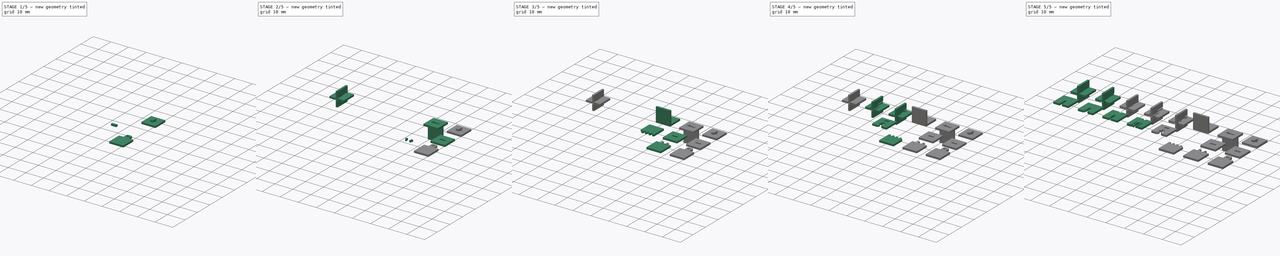
[diagram: build sequence overview — one tinted view per stage of 5, left to right]
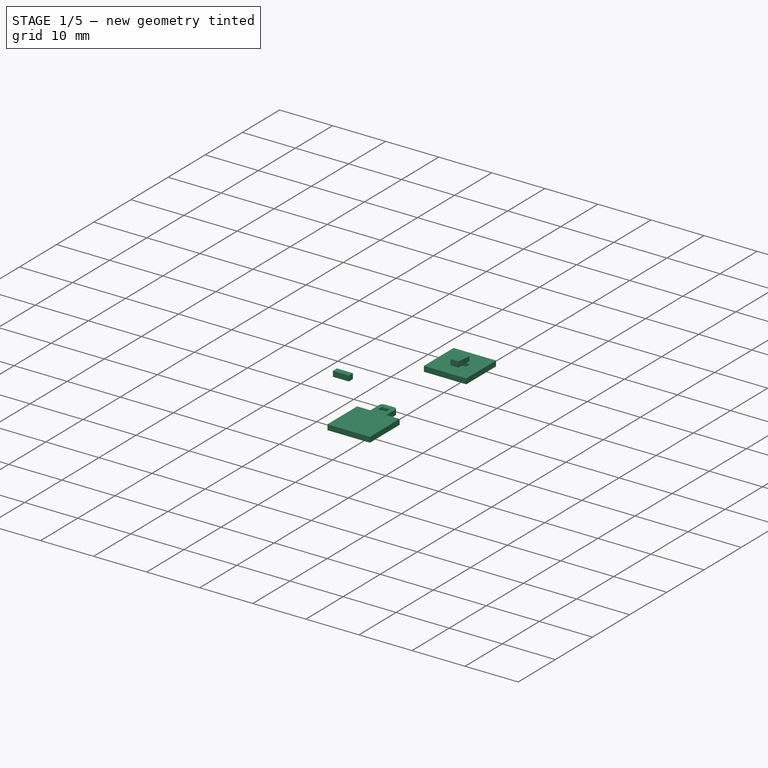
[diagram: stage 1 of 5 — iso view after this stage's code; geometry added in this stage tinted green]
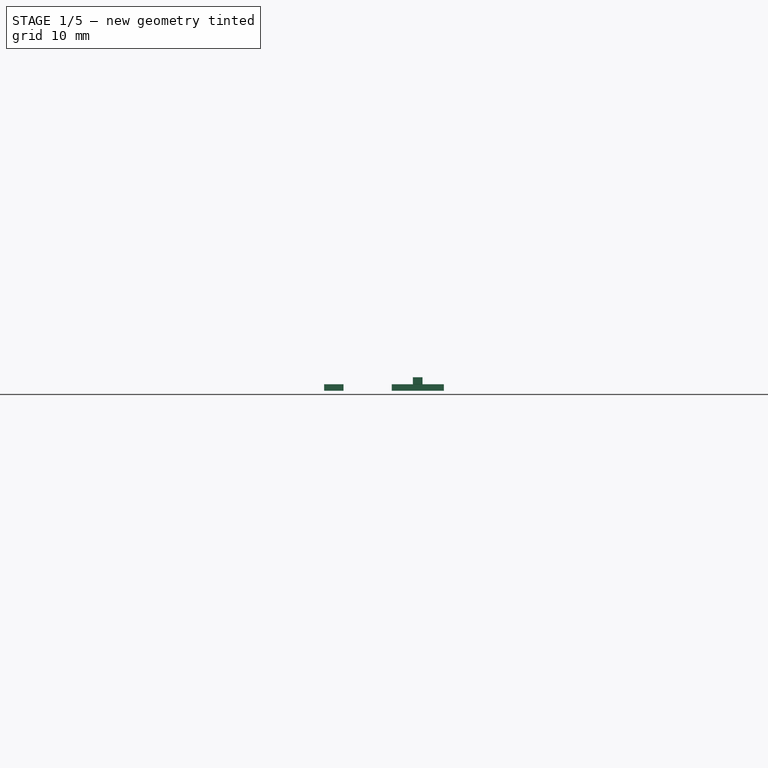
[diagram: stage 1 of 5 — front view after this stage's code; geometry added in this stage tinted green]
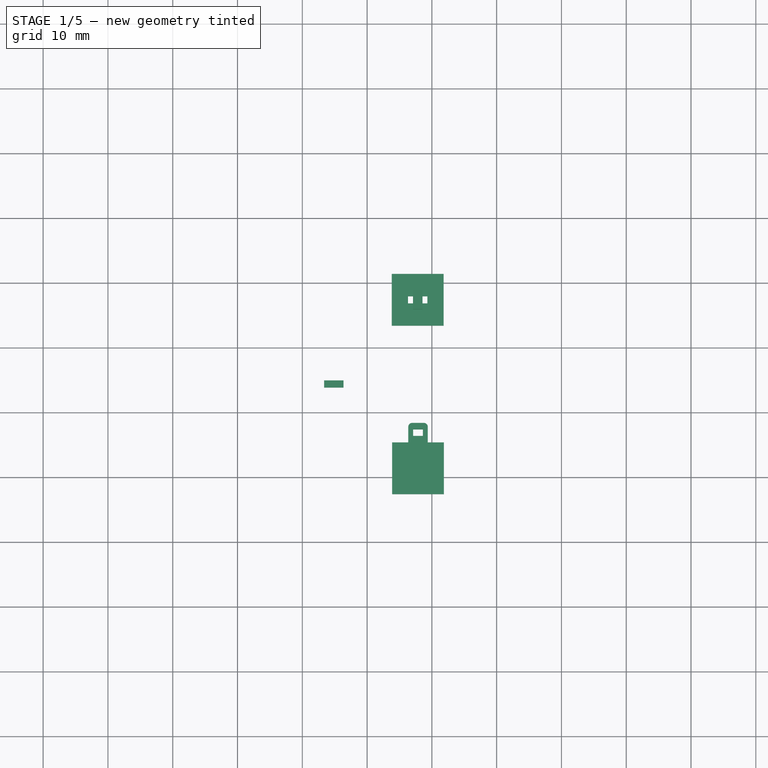
[diagram: stage 1 of 5 — top view after this stage's code; geometry added in this stage tinted green]
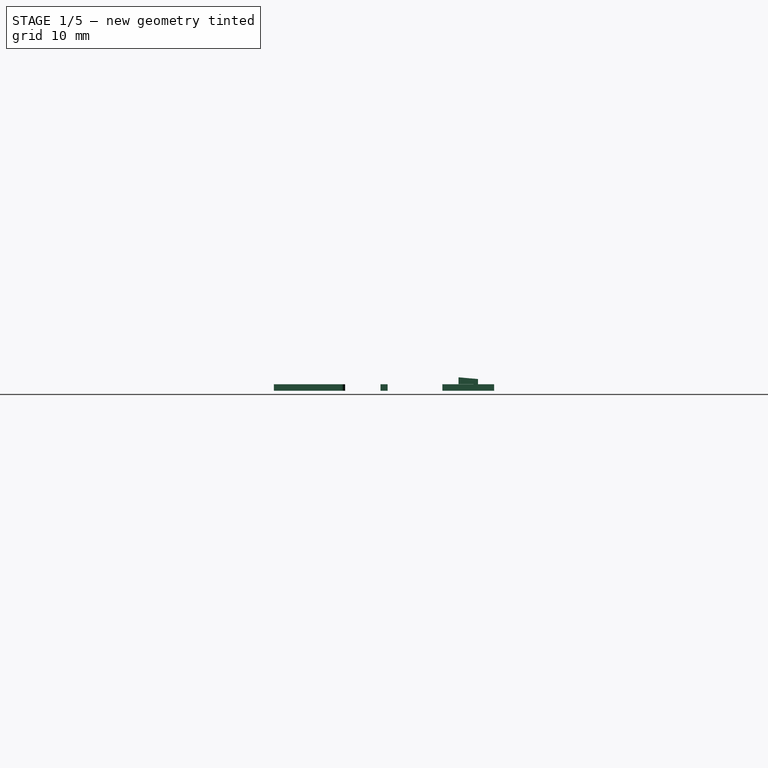
[diagram: stage 1 of 5 — right view after this stage's code; geometry added in this stage tinted green]
FCSTD DOCUMENT  (FreeCAD 0.18.3R)
Label: joints
License: All rights reserved
LicenseURL: http://en.wikipedia.org/wiki/All_rights_reserved
objects: Part::FeaturePython×18, Part::Part2DObjectPython×16, App::FeaturePython×10, Part::Extrusion×9, Sketcher::SketchObject×8, Part::Box×5, Part::Cut×3, Part::MultiFuse×2, Spreadsheet::Sheet×1, Part::Loft×1
note: 62 computed .brp shape members not serialized (recipe doc carries the construction recipe); baked Part::Feature solids carry a one-line shape summary decoded from their .brp

FEATURE [Part::Box] Box002  label="snapCubeSlot"
  AttacherType = Attacher::AttachEngine3D
  Height = 1
  Length = 8
  Placement = pos=(30.86,30.4267,0) rot=(0,0,1;0rad)
  Width = 8
  expr: Width = 2 * Spreadsheet.de
  expr: Length = 2 * Spreadsheet.de
  expr: Height = Spreadsheet.th
FEATURE [Part::Part2DObjectPython] ShapeString006  label="snapString"  # Draft 2D object (typed FeaturePython)
  FontFile = ./Arial Bold.ttf
  Placement = pos=(35.7221,8.66166,0) rot=(0,0,1;1.5708rad)
  Size = 2.5
  String = snap
  Tracking = 0
FEATURE [Sketcher::SketchObject] Sketch005  label="snapSketchSlot"
  ExternalGeometry = -> [Box002]
  MapMode = 5
  Placement = pos=(30.86,30.4267,1) rot=(0,0,1;0rad)
  Support = -> [Box002]
  expr: Constraints[9] = Spreadsheet.sw
  expr: Constraints[8] = Spreadsheet.th + Spreadsheet.cl
  sketch-geometry (7):
    g0: LineSegment StartX=2.5 StartY=4.55 StartZ=0 EndX=5.5 EndY=4.55 EndZ=0
    g1: LineSegment StartX=5.5 StartY=4.55 StartZ=0 EndX=5.5 EndY=3.45 EndZ=0
    g2: LineSegment StartX=5.5 StartY=3.45 StartZ=0 EndX=2.5 EndY=3.45 EndZ=0
    g3: LineSegment StartX=2.5 StartY=3.45 StartZ=0 EndX=2.5 EndY=4.55 EndZ=0
    g4: LineSegment [constr] StartX=8 StartY=0 StartZ=0 EndX=5.5 EndY=3.45 EndZ=0
    g5: LineSegment [constr] StartX=0 StartY=8 StartZ=0 EndX=2.5 EndY=4.55 EndZ=0
    g6: LineSegment [constr] StartX=0 StartY=0 StartZ=0 EndX=2.5 EndY=3.45 EndZ=0
  constraints (18):
    c: Coincident(g0,g1)
    c: Coincident(g1,g2)
    c: Coincident(g2,g3)
    c: Coincident(g3,g0)
    c: Horizontal(g0)
    c: Horizontal(g2)
    c: Vertical(g1)
    c: Vertical(g3)
    c: DistanceY(g1,g1) = 1.1
    c: DistanceX(g2,g2) = 3
    c: Coincident(g4,g1)
    c: Coincident(g4,g-6)
    c: Coincident(g5,g-4)
    c: Coincident(g5,g0)
    c: Equal(g5,g4)
    c: Coincident(g6,g2)
    c: Coincident(g6,g-1)
    c: Equal(g5,g6)
FEATURE [Part::Extrusion] Extrude006  label="snapSlotExtrude"
  Base = -> Sketch005
  Dir = (0,0,1)
  DirMode = 2
  FaceMakerClass = Part::FaceMakerBullseye
  LengthFwd = -1
  LengthRev = 0
  Solid = true
  Symmetric = false
  expr: LengthFwd = -Spreadsheet.th
FEATURE [Part::Part2DObjectPython] ShapeString007  label="wedgeString"  # Draft 2D object (typed FeaturePython)
  FontFile = ./Arial Bold.ttf
  Placement = pos=(48.3471,6.0559,0) rot=(0,0,1;1.5708rad)
  Size = 2.5
  String = wedge
  Tracking = 0
FEATURE [Part::Box] Box004  label="wedgeWedgeCube"
  AttacherType = Attacher::AttachEngine3D
  Height = 1
  Length = 8
  Placement = pos=(43.86,17.4167,0) rot=(0,0,1;0rad)
  Width = 8
  expr: Width = 2 * Spreadsheet.de
  expr: Length = 2 * Spreadsheet.de
  expr: Height = Spreadsheet.th
FEATURE [Sketcher::SketchObject] Sketch007  label="wedgeWedgeSketch"
  ExternalGeometry = -> [Box004]
  MapMode = 5
  Placement = pos=(43.86,17.4167,1) rot=(0,0,1;0rad)
  Support = -> [Box004]
  expr: Constraints[46] = Spreadsheet.sw / 2
  expr: Constraints[22] = 3 * Spreadsheet.th
  expr: Constraints[45] = Spreadsheet.th
  expr: Constraints[20] = Spreadsheet.sw
  sketch-geometry (16):
    g0: LineSegment StartX=5.5 StartY=8 StartZ=0 EndX=2.5 EndY=8 EndZ=0
    g1: LineSegment [constr] StartX=0 StartY=8 StartZ=0 EndX=2.5 EndY=8 EndZ=0
    g2: LineSegment [constr] StartX=5.5 StartY=8 StartZ=0 EndX=8 EndY=8 EndZ=0
    g3: LineSegment StartX=2.5 StartY=10.4141 StartZ=0 EndX=2.5 EndY=8 EndZ=0
    g4: LineSegment StartX=5.5 StartY=10.4141 StartZ=0 EndX=5.5 EndY=8 EndZ=0
    g5: ArcOfCircle CenterX=3.08585 CenterY=10.4141 CenterZ=0 NormalX=0 NormalY=0 NormalZ=1 AngleXU=0 Radius=0.585853 StartAngle=1.5708 EndAngle=3.14159
    g6: ArcOfCircle CenterX=4.91415 CenterY=10.4141 CenterZ=0 NormalX=0 NormalY=0 NormalZ=1 AngleXU=0 Radius=0.585853 StartAngle=-9e-16 EndAngle=1.5708
    g7: LineSegment StartX=3.08585 StartY=11 StartZ=0 EndX=4.91415 EndY=11 EndZ=0
    g8: LineSegment StartX=3.25 StartY=10 StartZ=0 EndX=4.75 EndY=10 EndZ=0
    g9: LineSegment StartX=4.75 StartY=10 StartZ=0 EndX=4.75 EndY=9 EndZ=0
    g10: LineSegment StartX=4.75 StartY=9 StartZ=0 EndX=3.25 EndY=9 EndZ=0
    g11: LineSegment StartX=3.25 StartY=9 StartZ=0 EndX=3.25 EndY=10 EndZ=0
    g12: LineSegment [constr] StartX=3.99766 StartY=11 StartZ=0 EndX=3.99766 EndY=10 EndZ=0
    g13: LineSegment [constr] StartX=3.97813 StartY=9 StartZ=0 EndX=3.97813 EndY=8 EndZ=0
    g14: LineSegment [constr] StartX=2.5 StartY=9.39746 StartZ=0 EndX=3.25 EndY=9.39746 EndZ=0
    g15: LineSegment [constr] StartX=4.75 StartY=9.40723 StartZ=0 EndX=5.5 EndY=9.40723 EndZ=0
  constraints (47):
    c: Horizontal(g0)
    c: PointOnObject(g0,g-3)
    c: Coincident(g1,g-3)
    c: Coincident(g1,g0)
    c: Coincident(g2,g-3)
    c: Equal(g2,g1)
    c: Coincident(g0,g2)
    c: Coincident(g4,g0)
    c: Coincident(g3,g0)
    c: Vertical(g4)
    c: Vertical(g3)
    c: Equal(g3,g4)
    c: Coincident(g5,g3)
    c: Coincident(g6,g4)
    c: Horizontal(g3,g5)
    c: Vertical(g5,g5)
    c: Horizontal(g6,g4)
    c: Horizontal(g5,g6)
    c: Coincident(g7,g5)
    c: Coincident(g7,g6)
    c: DistanceX(g0,g0) = 3
    c: Vertical(g6,g6)
    c: DistanceY(g0,g6) = 3
    c: Coincident(g8,g9)
    c: Coincident(g9,g10)
    c: Coincident(g10,g11)
    c: Coincident(g11,g8)
    c: Horizontal(g8)
    c: Horizontal(g10)
    c: Vertical(g9)
    c: Vertical(g11)
    c: PointOnObject(g12,g7)
    c: PointOnObject(g12,g8)
    c: Vertical(g12)
    c: PointOnObject(g13,g10)
    c: PointOnObject(g13,g0)
    c: Vertical(g13)
    c: PointOnObject(g14,g11)
    c: Horizontal(g14)
    c: PointOnObject(g15,g9)
    c: PointOnObject(g15,g4)
    c: Horizontal(g15)
    c: Equal(g14,g15)
    c: Equal(g12,g13)
    c: PointOnObject(g14,g3)
    c: DistanceY(g9,g8) = 1
    c: DistanceX(g10,g9) = 1.5
FEATURE [Part::Extrusion] Extrude008  label="wedgeExtrude"
  Base = -> Sketch007
  Dir = (0,0,1)
  DirMode = 2
  FaceMakerClass = Part::FaceMakerBullseye
  LengthFwd = -1
  LengthRev = 0
  Solid = true
  Symmetric = false
  expr: LengthFwd = -Spreadsheet.th
FEATURE [Part::MultiFuse] Fusion001  label="wedgeWedge"
  Shapes = -> [Box004,Extrude008]
FEATURE [Part::FeaturePython] b_joints_001_016  label="wedge 1"  # a2plus imported part (geometry in sourceFile) (typed FeaturePython)
  Placement = pos=(-0.05,13,0) rot=(0,0,1;0rad)
  a2p_Version = V0.1
  fixedPosition = false
  sourceFile = ./joints.FCStd
  sourcePart = wedgeSlot
  subassemblyImport = false
  timeLastImport = 1.56873e+09
  updateColors = false
FEATURE [Part::FeaturePython] b_joints_001_017  label="wedge 2"  # a2plus imported part (geometry in sourceFile) (typed FeaturePython)
  Placement = pos=(-0.05,47.9267,-25.4167) rot=(1,0,0;1.5708rad)
  a2p_Version = V0.1
  fixedPosition = false
  sourceFile = ./joints.FCStd
  sourcePart = wedgeWedge
  subassemblyImport = false
  timeLastImport = 1.56873e+09
  updateColors = false
FEATURE [Part::Part2DObjectPython] Rectangle  # Draft 2D object (typed FeaturePython)
  ChamferSize = 0
  Columns = 1
  FilletRadius = 0
  Height = 1.05
  Length = 1.48396
  MakeFace = true
  Placement = pos=(47.076,45.93,1.01594) rot=(1,0,0;1.5708rad)
  Rows = 1
  Support = -> [b_joints_001_017]
FEATURE [Part::Part2DObjectPython] Rectangle001  # Draft 2D object (typed FeaturePython)
  ChamferSize = 0
  Columns = 1
  FilletRadius = 0
  Height = 0.8
  Length = 1.46461
  MakeFace = true
  Placement = pos=(47.0954,48.93,1.8) rot=(-1,0,0;1.5708rad)
  Rows = 1
  Support = -> [b_joints_001_017]
FEATURE [Part::Loft] Loft
  Closed = false
  MaxDegree = 5
  Ruled = false
  Sections = -> [Rectangle,Rectangle001]
  Solid = true
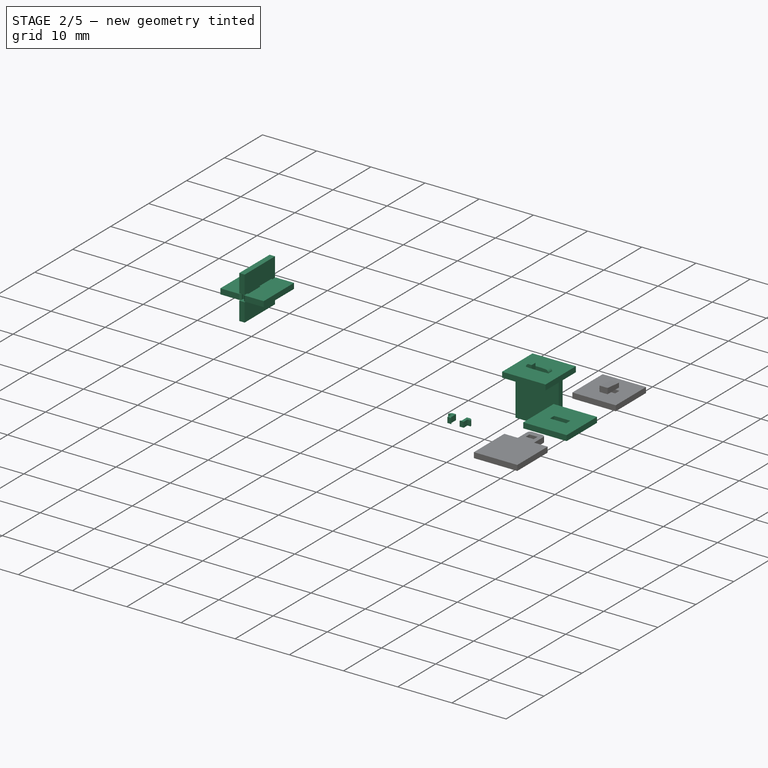
[diagram: stage 2 of 5 — iso view after this stage's code; geometry added in this stage tinted green]
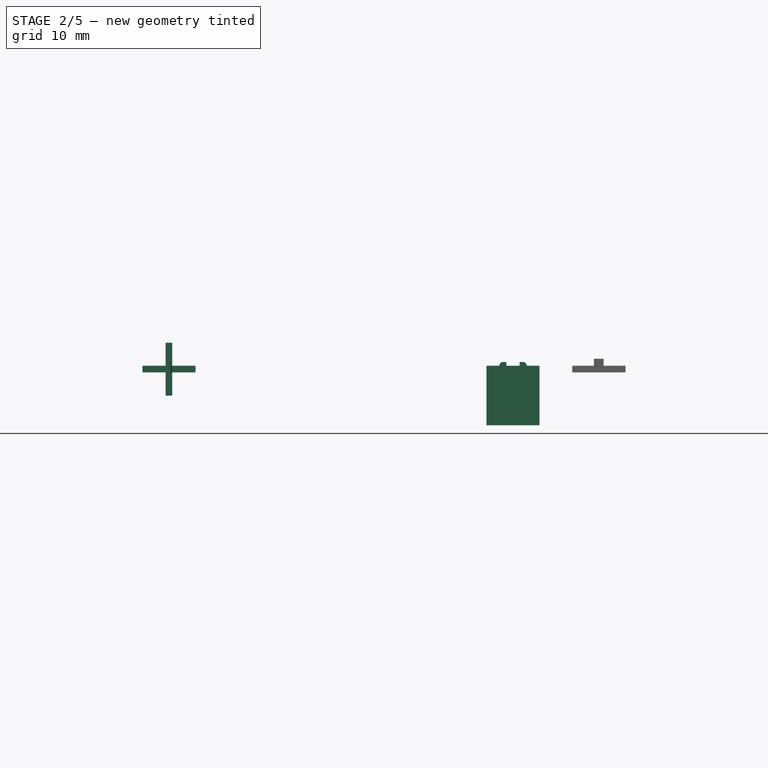
[diagram: stage 2 of 5 — front view after this stage's code; geometry added in this stage tinted green]
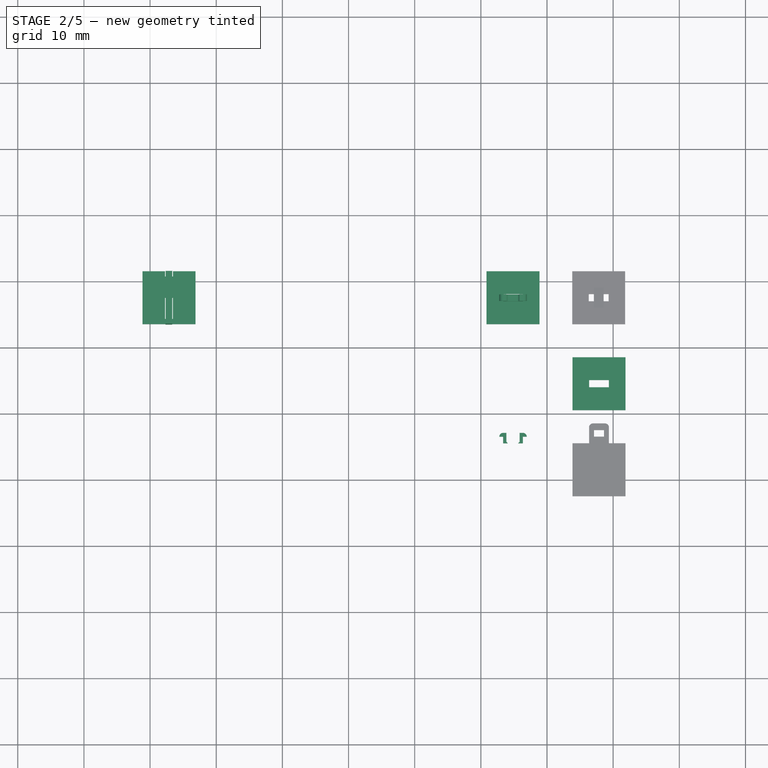
[diagram: stage 2 of 5 — top view after this stage's code; geometry added in this stage tinted green]
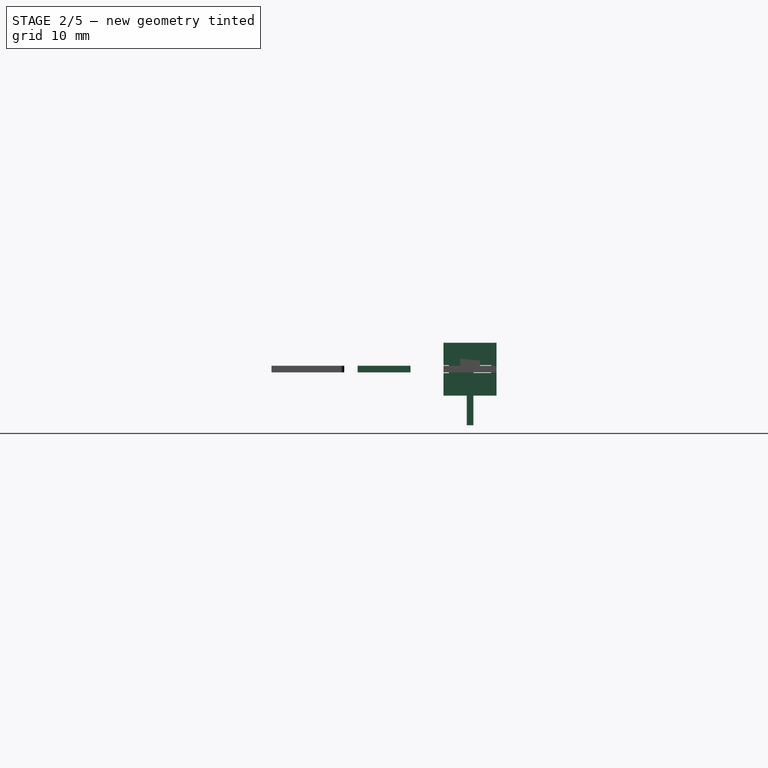
[diagram: stage 2 of 5 — right view after this stage's code; geometry added in this stage tinted green]
FEATURE [Part::Box] Box003  label="snapCubeSnap"
  AttacherType = Attacher::AttachEngine3D
  Height = 1
  Length = 8
  Placement = pos=(30.86,17.4167,0) rot=(0,0,1;0rad)
  Width = 8
  expr: Width = 2 * Spreadsheet.de
  expr: Length = 2 * Spreadsheet.de
  expr: Height = Spreadsheet.th
FEATURE [Sketcher::SketchObject] Sketch006  label="snapSketchSnap"
  ExternalGeometry = -> [Box003]
  MapMode = 5
  Placement = pos=(30.86,17.4167,1) rot=(0,0,1;0rad)
  Support = -> [Box003]
  expr: Constraints[8] = Spreadsheet.th
  expr: Constraints[7] = Spreadsheet.sw
  sketch-geometry (17):
    g0: LineSegment StartX=5.5 StartY=9 StartZ=0 EndX=5.5 EndY=8 EndZ=0
    g1: LineSegment StartX=2.5 StartY=8 StartZ=0 EndX=2.5 EndY=9 EndZ=0
    g2: LineSegment [constr] StartX=5.5 StartY=8 StartZ=0 EndX=8 EndY=8 EndZ=0
    g3: LineSegment [constr] StartX=2.5 StartY=8 StartZ=0 EndX=0 EndY=8 EndZ=0
    g4: ArcOfCircle CenterX=2.5 CenterY=9 CenterZ=0 NormalX=0 NormalY=0 NormalZ=1 AngleXU=0 Radius=0.571194 StartAngle=1.5708 EndAngle=3.14159
    g5: LineSegment StartX=1.92881 StartY=9 StartZ=0 EndX=2.5 EndY=9 EndZ=0
    g6: ArcOfCircle CenterX=5.5 CenterY=9 CenterZ=0 NormalX=0 NormalY=0 NormalZ=1 AngleXU=0 Radius=0.571194 StartAngle=8e-16 EndAngle=1.5708
    g7: LineSegment StartX=5.5 StartY=9 StartZ=0 EndX=6.07119 EndY=9 EndZ=0
    g8: LineSegment [constr] StartX=5.5 StartY=9.57119 StartZ=0 EndX=5.5 EndY=9 EndZ=0
    g9: LineSegment StartX=5.00736 StartY=9.57119 StartZ=0 EndX=5.00736 EndY=8.23585 EndZ=0
    g10: LineSegment StartX=2.99264 StartY=8.23585 StartZ=0 EndX=2.99264 EndY=9.57119 EndZ=0
    g11: LineSegment StartX=2.5 StartY=9.57119 StartZ=0 EndX=2.99264 EndY=9.57119 EndZ=0
    g12: LineSegment StartX=5.00736 StartY=9.57119 StartZ=0 EndX=5.5 EndY=9.57119 EndZ=0
    g13: LineSegment StartX=2.5 StartY=8 StartZ=0 EndX=3.22849 EndY=8 EndZ=0
    g14: LineSegment StartX=4.77151 StartY=8 StartZ=0 EndX=5.5 EndY=8 EndZ=0
    g15: LineSegment StartX=2.99264 StartY=8.23585 StartZ=0 EndX=3.22849 EndY=8 EndZ=0
    g16: LineSegment StartX=5.00736 StartY=8.23585 StartZ=0 EndX=4.77151 EndY=8 EndZ=0
  constraints (46):
    c: Vertical(g0)
    c: Vertical(g1)
    c: PointOnObject(g0,g-3)
    c: Coincident(g2,g0)
    c: Coincident(g2,g-5)
    c: Coincident(g3,g-4)
    c: Equal(g2,g3)
    c: DistanceX(g1,g0) = 3
    c: DistanceY(g0,g0) = 1
    c: Horizontal(g4,g1)
    c: Coincident(g1,g5)
    c: Coincident(g4,g5)
    c: PointOnObject(g4,g5)
    c: Coincident(g1,g3)
    c: Horizontal(g1,g0)
    c: PointOnObject(g4,g1)
    c: PointOnObject(g4,g1)
    c: Coincident(g6,g0)
    c: Horizontal(g0,g6)
    c: Coincident(g7,g0)
    c: Coincident(g7,g6)
    c: PointOnObject(g6,g0)
    c: Coincident(g8,g0)
    c: Vertical(g9)
    c: Vertical(g10)
    c: Coincident(g11,g4)
    c: Coincident(g11,g10)
    c: Horizontal(g11)
    c: Coincident(g12,g9)
    c: Coincident(g12,g6)
    c: Horizontal(g12)
    c: Coincident(g13,g1)
    c: Horizontal(g13)
    c: Coincident(g14,g0)
    c: Horizontal(g14)
    c: Coincident(g6,g8)
    c: Horizontal(g10,g9)
    c: Equal(g13,g14)
    c: PointOnObject(g15,g-3)
    c: Equal(g15,g16)
    c: Angle(g15) = -0.785398
    c: Angle(g16) = -2.35619
    c: Coincident(g10,g15)
    c: Coincident(g9,g16)
    c: Coincident(g13,g15)
    c: Coincident(g14,g16)
FEATURE [Part::Extrusion] Extrude007  label="snapSnapExtrude"
  Base = -> Sketch006
  Dir = (0,0,1)
  DirMode = 2
  FaceMakerClass = Part::FaceMakerBullseye
  LengthFwd = -1
  LengthRev = 0
  Solid = true
  Symmetric = false
  expr: LengthFwd = -Spreadsheet.th
FEATURE [Part::FeaturePython] b_joints_001_012  label="snap 1"  # a2plus imported part (geometry in sourceFile) (typed FeaturePython)
  Placement = pos=(0,13,0) rot=(0,0,1;0rad)
  a2p_Version = V0.1
  fixedPosition = false
  sourceFile = ./joints.FCStd
  sourcePart = snapSlot
  subassemblyImport = false
  timeLastImport = 1.56873e+09
  updateColors = false
FEATURE [Part::FeaturePython] b_joints_001_013  label="snap 2"  # a2plus imported part (geometry in sourceFile) (typed FeaturePython)
  Placement = pos=(0,47.9267,-25.4167) rot=(1,0,0;1.5708rad)
  a2p_Version = V0.1
  fixedPosition = false
  sourceFile = ./joints.FCStd
  sourcePart = snapSnap
  subassemblyImport = false
  timeLastImport = 1.56873e+09
  updateColors = false
FEATURE [Part::FeaturePython] b_joints_001_014  label="snapFit 1"  # a2plus imported part (geometry in sourceFile) (typed FeaturePython)
  Placement = pos=(0,13,0) rot=(0,0,1;0rad)
  a2p_Version = V0.1
  fixedPosition = true
  sourceFile = ./joints.FCStd
  sourcePart = snapFit
  subassemblyImport = false
  timeLastImport = 1.56873e+09
  updateColors = false
FEATURE [Part::FeaturePython] b_joints_001_015  label="snapFit 2"  # a2plus imported part (geometry in sourceFile) (typed FeaturePython)
  Placement = pos=(-16.6511,81.8416,-16.6511) rot=(0.707107,0,-0.707107;3.14159rad)
  a2p_Version = V0.1
  fixedPosition = false
  sourceFile = ./joints.FCStd
  sourcePart = snapFit
  subassemblyImport = false
  timeLastImport = 1.56873e+09
  updateColors = false
FEATURE [App::FeaturePython] centerOfMass_003  label="centerOfMass_003__snapFit 2"  # a2plus constraint (typed FeaturePython)
  Object1 = b_joints_001_014
  Object2 = b_joints_001_015
  ParentTreeObject = -> b_joints_001_014
  SubElement1 = Face12
  SubElement2 = Face12
  Type = CenterOfMass
  directionConstraint = 1
  lockRotation = false
  offset = 0
FEATURE [App::FeaturePython] centerOfMass_003_mirror  label="centerOfMass_003__snapFit 1"  # a2plus constraint (typed FeaturePython)
  Object1 = b_joints_001_014
  Object2 = b_joints_001_015
  ParentTreeObject = -> b_joints_001_015
  SubElement1 = Face12
  SubElement2 = Face12
  Type = CenterOfMass
  directionConstraint = 1
  lockRotation = false
  offset = 0
FEATURE [Part::Cut] Cut002  label="wedgeSlot"
  Base = -> Box002
  Placement = pos=(13,-4e-15,0) rot=(0,0,1;0rad)
  Tool = -> Extrude006
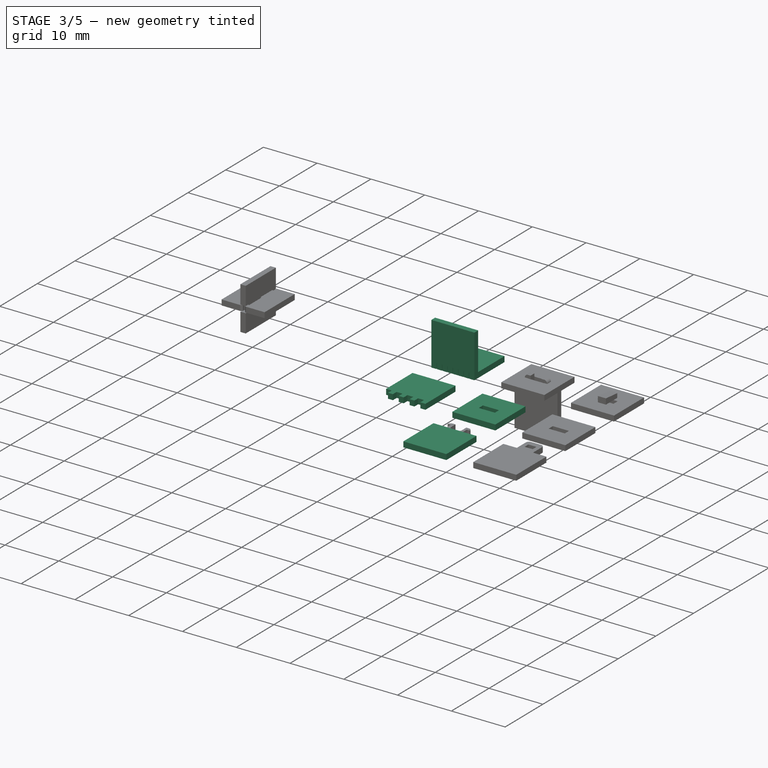
[diagram: stage 3 of 5 — iso view after this stage's code; geometry added in this stage tinted green]
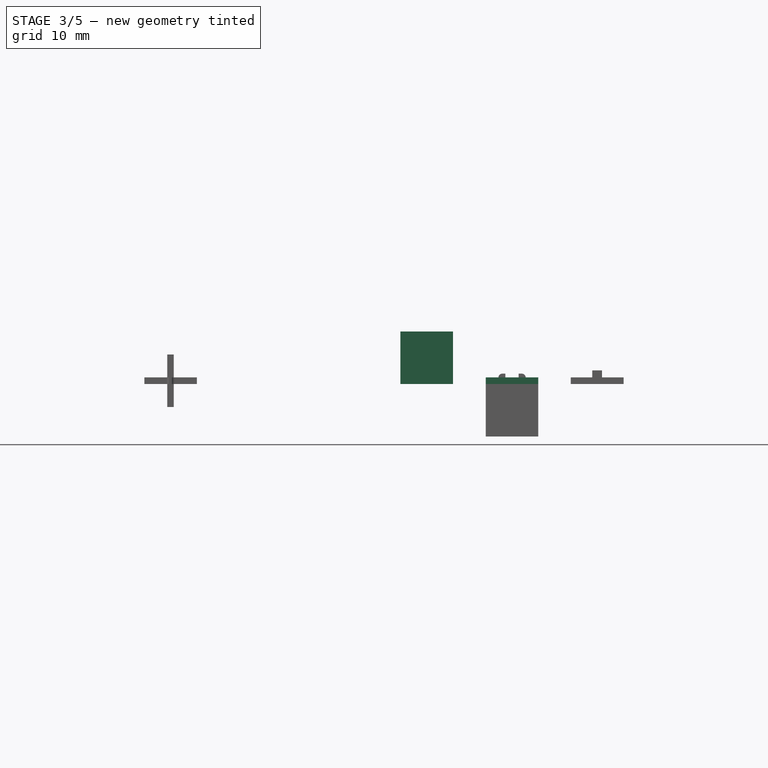
[diagram: stage 3 of 5 — front view after this stage's code; geometry added in this stage tinted green]
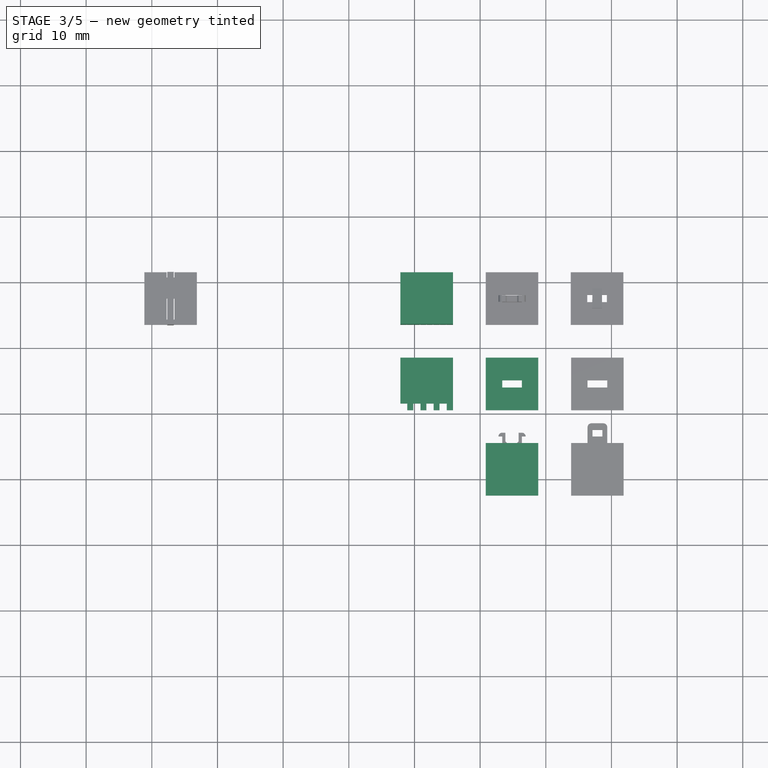
[diagram: stage 3 of 5 — top view after this stage's code; geometry added in this stage tinted green]
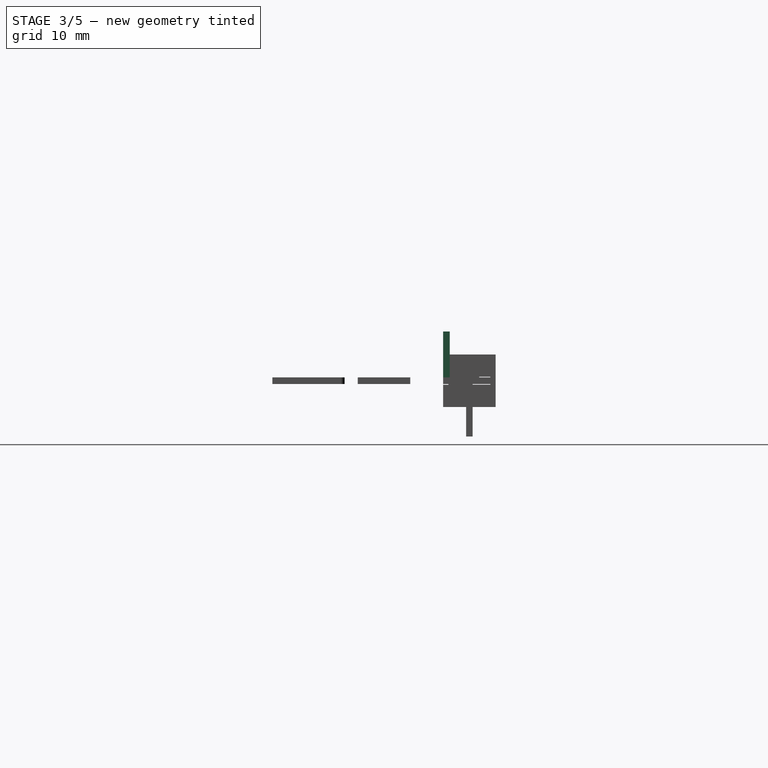
[diagram: stage 3 of 5 — right view after this stage's code; geometry added in this stage tinted green]
FEATURE [Part::Part2DObjectPython] ShapeString  label="pressString"  # Draft 2D object (typed FeaturePython)
  FontFile = ./Arial Bold.ttf
  Placement = pos=(-42.3785,3.23446,0) rot=(0,0,1;1.5708rad)
  Size = 2.5
  String = press-fit
  Tracking = 0
FEATURE [Part::Part2DObjectPython] ShapeString001  label="chamferString"  # Draft 2D object (typed FeaturePython)
  FontFile = ./Arial Bold.ttf
  Placement = pos=(-29.3475,3.20199,0) rot=(0,0,1;1.5708rad)
  Size = 2.5
  String = chamfer
  Tracking = 0
FEATURE [Part::Part2DObjectPython] ShapeString002  label="snapFitString"  # Draft 2D object (typed FeaturePython)
  FontFile = ./Arial Bold.ttf
  Placement = pos=(-16.4752,3.82058,0) rot=(0,0,1;1.5708rad)
  Size = 2.5
  String = snap-fit
  Tracking = 0
FEATURE [Part::Part2DObjectPython] ShapeString003  label="flexString"  # Draft 2D object (typed FeaturePython)
  FontFile = ./Arial Bold.ttf
  Placement = pos=(-3.51669,5.30443,-9e-16) rot=(0,0,1;1.5708rad)
  Size = 2.5
  String = flexure
  Tracking = 0
FEATURE [Part::Part2DObjectPython] ShapeString004  label="pinnedString"  # Draft 2D object (typed FeaturePython)
  FontFile = ./Arial Bold.ttf
  Placement = pos=(9.47252,5.58599,0) rot=(0,0,1;1.5708rad)
  Size = 2.5
  String = pinned
  Tracking = 0
FEATURE [Part::Part2DObjectPython] ShapeString005  label="fingerString"  # Draft 2D object (typed FeaturePython)
  FontFile = ./Arial Bold.ttf
  Placement = pos=(22.5634,6.94291,0) rot=(0,0,1;1.5708rad)
  Size = 2.5
  String = finger
  Tracking = 0
FEATURE [Part::Box] Box  label="fingerCube"
  AttacherType = Attacher::AttachEngine3D
  Height = 1
  Length = 8
  Placement = pos=(17.86,30.4267,0) rot=(0,0,1;0rad)
  Width = 8
  expr: Width = 2 * Spreadsheet.de
  expr: Length = 2 * Spreadsheet.de
  expr: Height = Spreadsheet.th
FEATURE [Part::Box] Box001  label="finger"
  AttacherType = Attacher::AttachEngine3D
  Height = 1
  Length = 1.1
  Placement = pos=(17.86,30.4267,0) rot=(0,0,1;0rad)
  Width = 1
  expr: Width = Spreadsheet.df
  expr: Length = Spreadsheet.wf
  expr: Height = Spreadsheet.th
FEATURE [Part::FeaturePython] Array  # Draft array (typed FeaturePython)
  Angle = 360
  ArrayType = 0
  Axis = (0,0,1)
  Base = -> Box001
  Center = (0,0,0)
  Fuse = false
  IntervalAxis = (0,0,0)
  IntervalX = (2,0,0)
  IntervalY = (0,1,0)
  IntervalZ = (0,0,1)
  NumberPolar = 1
  NumberX = 4
  NumberY = 1
  NumberZ = 1
  Placement = pos=(-0.05,0,0) rot=(0,0,1;0rad)
  expr: Placement.Base.x = -Spreadsheet.cl / 2
  expr: IntervalX.x = Spreadsheet.pf
FEATURE [Part::Cut] Cut  label="fingers"
  Base = -> Box
  Tool = -> Array
FEATURE [Part::FeaturePython] b_joints_001_010  label="fingers 1"  # a2plus imported part (geometry in sourceFile) (typed FeaturePython)
  Placement = pos=(0,13,0) rot=(0,0,1;0rad)
  a2p_Version = V0.1
  fixedPosition = false
  sourceFile = ./joints.FCStd
  sourcePart = fingers
  subassemblyImport = false
  timeLastImport = 1.56873e+09
  updateColors = false
FEATURE [Part::FeaturePython] b_joints_001_011  label="fingers 2"  # a2plus imported part (geometry in sourceFile) (typed FeaturePython)
  Placement = pos=(0,43.4267,25.4167) rot=(-1,0,0;1.5708rad)
  a2p_Version = V0.1
  fixedPosition = false
  sourceFile = ./joints.FCStd
  sourcePart = fingersRev
  subassemblyImport = false
  timeLastImport = 1.56873e+09
  updateColors = false
FEATURE [Part::Cut] Cut001  label="snapSlot"
  Base = -> Box002
  Tool = -> Extrude006
FEATURE [Part::MultiFuse] Fusion  label="snapSnap"
  Shapes = -> [Box003,Extrude007]
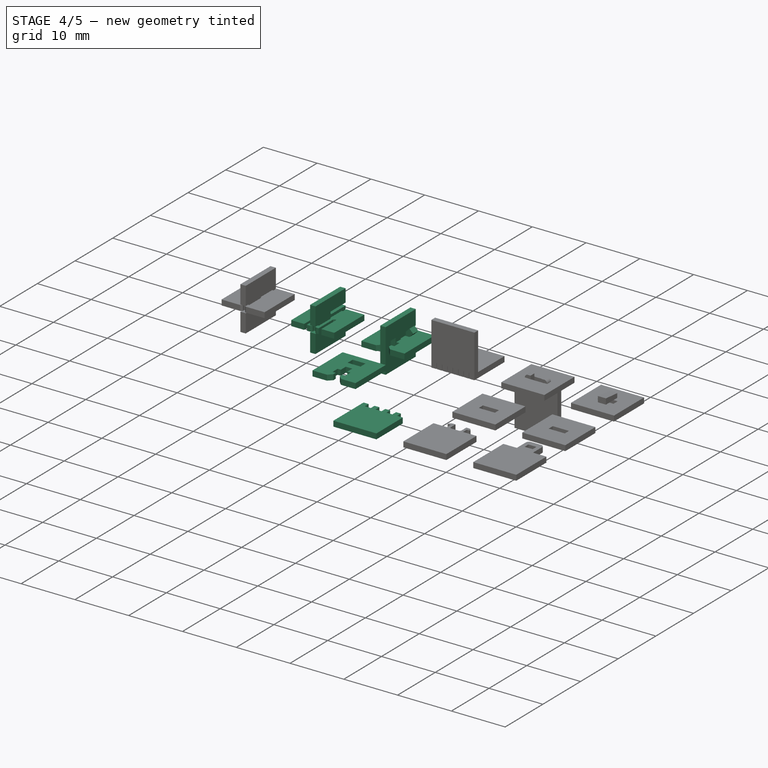
[diagram: stage 4 of 5 — iso view after this stage's code; geometry added in this stage tinted green]
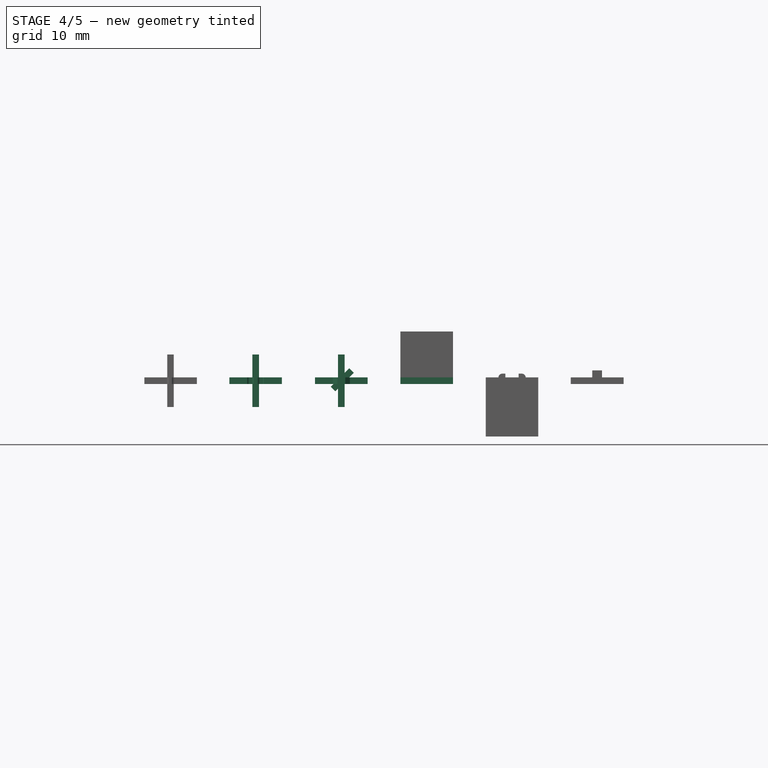
[diagram: stage 4 of 5 — front view after this stage's code; geometry added in this stage tinted green]
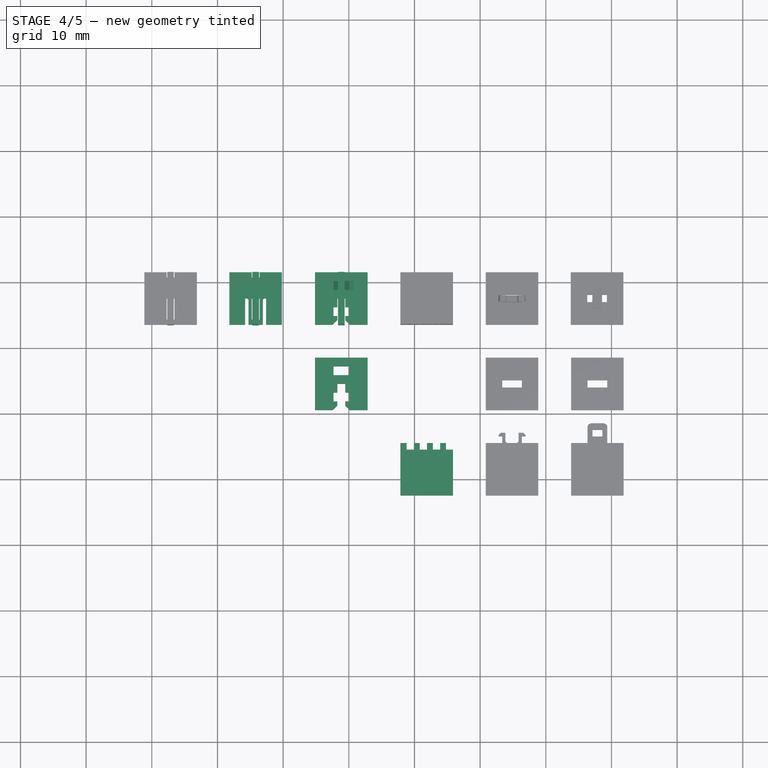
[diagram: stage 4 of 5 — top view after this stage's code; geometry added in this stage tinted green]
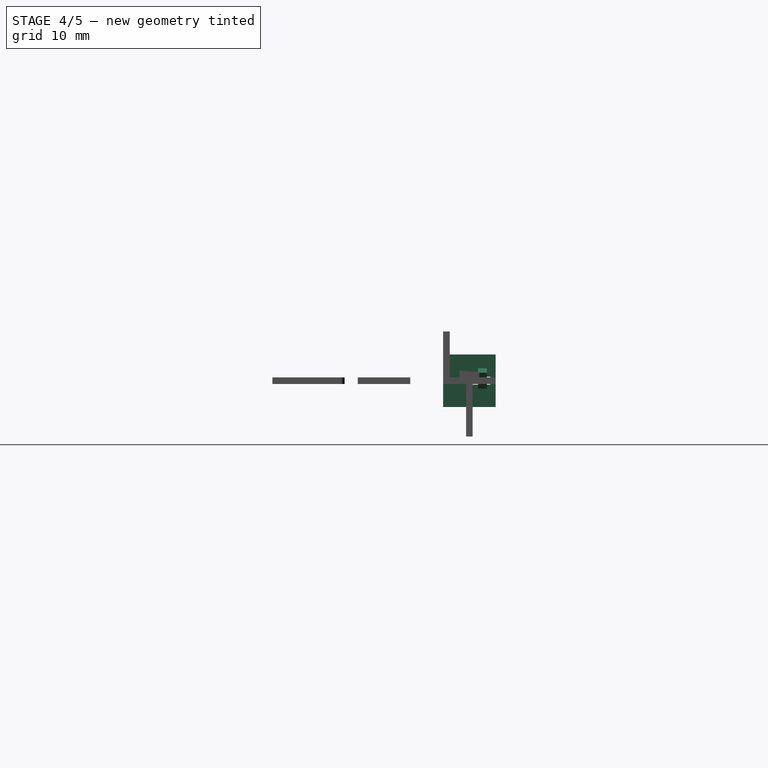
[diagram: stage 4 of 5 — right view after this stage's code; geometry added in this stage tinted green]
FEATURE [Part::FeaturePython] b_joints_001_006  label="flexure 1"  # a2plus imported part (geometry in sourceFile) (typed FeaturePython)
  Placement = pos=(-0.0435467,13,0) rot=(0,0,1;0rad)
  a2p_Version = V0.1
  fixedPosition = true
  sourceFile = ./joints.FCStd
  sourcePart = flexure
  subassemblyImport = false
  timeLastImport = 1.56873e+09
  updateColors = true
FEATURE [Part::FeaturePython] b_joints_001_007  label="flexure 2"  # a2plus imported part (geometry in sourceFile) (typed FeaturePython)
  Placement = pos=(-4.68374,81.8416,4.6402) rot=(0.707107,0,0.707107;3.14159rad)
  a2p_Version = V0.1
  fixedPosition = false
  sourceFile = ./joints.FCStd
  sourcePart = flexure
  subassemblyImport = false
  timeLastImport = 1.56873e+09
  updateColors = true
FEATURE [App::FeaturePython] centerOfMass_004  label="centerOfMass_004__flexure 1"  # a2plus constraint (typed FeaturePython)
  Object1 = b_joints_001_007
  Object2 = b_joints_001_006
  ParentTreeObject = -> b_joints_001_007
  SubElement1 = Face19
  SubElement2 = Face19
  Type = CenterOfMass
  directionConstraint = 1
  lockRotation = false
  offset = 0
FEATURE [App::FeaturePython] centerOfMass_004_mirror  label="centerOfMass_004__flexure 2"  # a2plus constraint (typed FeaturePython)
  Object1 = b_joints_001_007
  Object2 = b_joints_001_006
  ParentTreeObject = -> b_joints_001_006
  SubElement1 = Face19
  SubElement2 = Face19
  Type = CenterOfMass
  directionConstraint = 1
  lockRotation = false
  offset = 0
FEATURE [Sketcher::SketchObject] Sketch004  label="pinnedSketch"
  Placement = pos=(55.104,-0.430777,0) rot=(0,0,1;0rad)
  expr: Constraints[57] = Spreadsheet.de / 3
  expr: Constraints[56] = Spreadsheet.de / 3
  expr: Constraints[16] = 2 * Spreadsheet.de
  expr: Constraints[25] = Spreadsheet.ch
  expr: Constraints[55] = Spreadsheet.de / 3
  expr: Constraints[14] = Spreadsheet.wi
  expr: Constraints[17] = 2 * Spreadsheet.de
  expr: Constraints[47] = Spreadsheet.wi / 2
  expr: Constraints[24] = Spreadsheet.ch
  expr: Constraints[39] = Spreadsheet.de / 3
  sketch-geometry (22):
    g0: LineSegment StartX=-50.2442 StartY=25.8516 StartZ=0 EndX=-42.2442 EndY=25.8516 EndZ=0
    g1: LineSegment StartX=-42.2442 StartY=25.8516 StartZ=0 EndX=-42.2442 EndY=17.8516 EndZ=0
    g2: LineSegment StartX=-42.2442 StartY=17.8516 StartZ=0 EndX=-44.9371 EndY=17.8516 EndZ=0
    g3: LineSegment StartX=-50.2442 StartY=17.8516 StartZ=0 EndX=-50.2442 EndY=25.8516 EndZ=0
    g4: LineSegment StartX=-46.8442 StartY=21.8516 StartZ=0 EndX=-45.6442 EndY=21.8516 EndZ=0
    g5: LineSegment StartX=-45.6442 StartY=21.8516 StartZ=0 EndX=-45.6442 EndY=20.5182 EndZ=0
    g6: LineSegment StartX=-46.8442 StartY=18.5587 StartZ=0 EndX=-46.8442 EndY=19.1849 EndZ=0
    g7: LineSegment StartX=-47.5513 StartY=17.8516 StartZ=0 EndX=-50.2442 EndY=17.8516 EndZ=0
    g8: LineSegment StartX=-44.9371 StartY=17.8516 StartZ=0 EndX=-45.6442 EndY=18.5587 EndZ=0
    g9: LineSegment StartX=-47.5513 StartY=17.8516 StartZ=0 EndX=-46.8442 EndY=18.5587 EndZ=0
    g10: LineSegment StartX=-47.4442 StartY=20.5182 StartZ=0 EndX=-46.8442 EndY=20.5182 EndZ=0
    g11: LineSegment StartX=-45.0442 StartY=20.5182 StartZ=0 EndX=-45.0442 EndY=19.1849 EndZ=0
    g12: LineSegment StartX=-45.0442 StartY=19.1849 StartZ=0 EndX=-45.6442 EndY=19.1849 EndZ=0
    g13: LineSegment StartX=-47.4442 StartY=19.1849 StartZ=0 EndX=-47.4442 EndY=20.5182 EndZ=0
    g14: LineSegment StartX=-47.4442 StartY=24.5182 StartZ=0 EndX=-45.0442 EndY=24.5182 EndZ=0
    g15: LineSegment StartX=-45.0442 StartY=24.5182 StartZ=0 EndX=-45.0442 EndY=23.1849 EndZ=0
    g16: LineSegment StartX=-45.0442 StartY=23.1849 StartZ=0 EndX=-47.4442 EndY=23.1849 EndZ=0
    g17: LineSegment StartX=-47.4442 StartY=23.1849 StartZ=0 EndX=-47.4442 EndY=24.5182 EndZ=0
    g18: LineSegment StartX=-46.8442 StartY=20.5182 StartZ=0 EndX=-46.8442 EndY=21.8516 EndZ=0
    g19: LineSegment StartX=-45.6442 StartY=19.1849 StartZ=0 EndX=-45.6442 EndY=18.5587 EndZ=0
    g20: LineSegment StartX=-45.6442 StartY=20.5182 StartZ=0 EndX=-45.0442 EndY=20.5182 EndZ=0
    g21: LineSegment StartX=-46.8442 StartY=19.1849 StartZ=0 EndX=-47.4442 EndY=19.1849 EndZ=0
  constraints (59):
    c: Coincident(g0,g1)
    c: Coincident(g1,g2)
    c: Coincident(g7,g3)
    c: Coincident(g3,g0)
    c: Horizontal(g0)
    c: Horizontal(g2)
    c: Vertical(g1)
    c: Vertical(g3)
    c: Coincident(g4,g5)
    c: Coincident(g18,g4)
    c: Horizontal(g4)
    c: Vertical(g5)
    c: Vertical(g6)
    c: Tangent(g2,g7)
    c: DistanceX(g4,g4) = 1.2
    c: Equal(g7,g2)
    c: DistanceY(g1,g1) = 8
    c: DistanceX(g0,g0) = 8
    c: Coincident(g6,g9)
    c: Coincident(g7,g9)
    c: Coincident(g19,g8)
    c: Coincident(g2,g8)
    c: Angle(g9) = 0.785398
    c: Angle(g8) = 2.35619
    c: Distance(g9) = 1
    c: Distance(g8) = 1
    c: Coincident(g20,g11)
    c: Coincident(g11,g12)
    c: Coincident(g21,g13)
    c: Coincident(g13,g10)
    c: Horizontal(g10)
    c: Coincident(g14,g15)
    c: Coincident(g15,g16)
    c: Coincident(g16,g17)
    c: Coincident(g17,g14)
    c: Horizontal(g14)
    c: Vertical(g15)
    c: Tangent(g6,g18)
    c: Tangent(g5,g19)
    c: DistanceY(g15,g15) = 1.33333
    c: Equal(g14,g16)
    c: Coincident(g10,g18)
    c: Coincident(g20,g5)
    c: Tangent(g10,g20)
    c: Coincident(g12,g19)
    c: Coincident(g21,g6)
    c: Tangent(g12,g21)
    c: DistanceX(g10,g10) = 0.6
    c: Equal(g10,g20)
    c: Equal(g20,g12)
    c: Equal(g12,g21)
    c: Equal(g15,g17)
    c: Equal(g17,g11)
    c: Equal(g11,g13)
    c: Vertical(g15,g11)
    c: DistanceY(g11,g4) = 1.33333
    c: DistanceY(g4,g16) = 1.33333
    c: DistanceY(g14,g0) = 1.33333
    c: Vertical(g16,g10)
FEATURE [Part::Part2DObjectPython] Clone2D004  label="pinned (2D)"  # Draft 2D object (typed FeaturePython)
  Fuse = false
  Objects = -> [Sketch004]
  Placement = pos=(53.8069,12.6187,0) rot=(0,0,1;0rad)
  Scale = (1,1,1)
FEATURE [Part::Extrusion] Extrude004  label="pinned"
  Base = -> Clone2D004
  Dir = (0,0,1)
  DirMode = 2
  FaceMakerClass = Part::FaceMakerBullseye
  LengthFwd = 1
  LengthRev = 0
  Placement = pos=(1.29709,-0.0436058,0) rot=(0,0,1;0rad)
  Solid = true
  Symmetric = false
  expr: LengthFwd = Spreadsheet.th
FEATURE [Part::FeaturePython] b_joints_001_008  label="pinned 1"  # a2plus imported part (geometry in sourceFile) (typed FeaturePython)
  Placement = pos=(4e-15,13,0) rot=(0,0,1;0rad)
  a2p_Version = V0.1
  fixedPosition = true
  sourceFile = ./joints.FCStd
  sourcePart = pinned
  subassemblyImport = false
  timeLastImport = 1.56873e+09
  updateColors = true
FEATURE [Part::FeaturePython] b_joints_001_009  label="pinned 2"  # a2plus imported part (geometry in sourceFile) (typed FeaturePython)
  Placement = pos=(8.3598,81.8533,-8.3598) rot=(0.707107,0,0.707107;3.14159rad)
  a2p_Version = V0.1
  fixedPosition = false
  sourceFile = ./joints.FCStd
  sourcePart = pinned
  subassemblyImport = false
  timeLastImport = 1.56873e+09
  updateColors = true
FEATURE [App::FeaturePython] centerOfMass_005  label="centerOfMass_005__pinned 1"  # a2plus constraint (typed FeaturePython)
  Object1 = b_joints_001_009
  Object2 = b_joints_001_008
  ParentTreeObject = -> b_joints_001_009
  SubElement1 = Face12
  SubElement2 = Face12
  Type = CenterOfMass
  directionConstraint = 1
  lockRotation = false
  offset = 0
FEATURE [App::FeaturePython] centerOfMass_005_mirror  label="centerOfMass_005__pinned 2"  # a2plus constraint (typed FeaturePython)
  Object1 = b_joints_001_009
  Object2 = b_joints_001_008
  ParentTreeObject = -> b_joints_001_008
  SubElement1 = Face12
  SubElement2 = Face12
  Type = CenterOfMass
  directionConstraint = 1
  lockRotation = false
  offset = 0
FEATURE [Part::Part2DObjectPython] Wire  # Draft 2D object (typed FeaturePython)
  ChamferSize = 0
  Closed = true
  End = (10.0598,50.0933,1)
  FilletRadius = 0
  Length = 4.64656
  MakeFace = false
  Placement = pos=(10.0598,48.76,1) rot=(0,0,1;0rad)
  Points = (4) [(0,0,0),(-0.699999,-1.14441e-05,0.699999),(-0.699999,1.33332,0.699999),(0,1.33333,0)]
  Start = (10.0598,48.76,1)
  Subdivisions = 0
FEATURE [Part::Extrusion] Extrude005  label="pin"
  Base = -> Wire
  Dir = (1,0,1)
  DirMode = 0
  FaceMakerClass = Part::FaceMakerBullseye
  LengthFwd = 1
  LengthRev = 3
  Solid = true
  Symmetric = false
FEATURE [Part::FeaturePython] Clone  label="fingersRev"  # Draft clone (typed FeaturePython)
  AttacherType = Attacher::AttachEngine3D
  Fuse = false
  Objects = -> [Cut]
  Placement = pos=(43.72,55.8434,0) rot=(0,0,1;3.14159rad)
  Scale = (1,1,1)
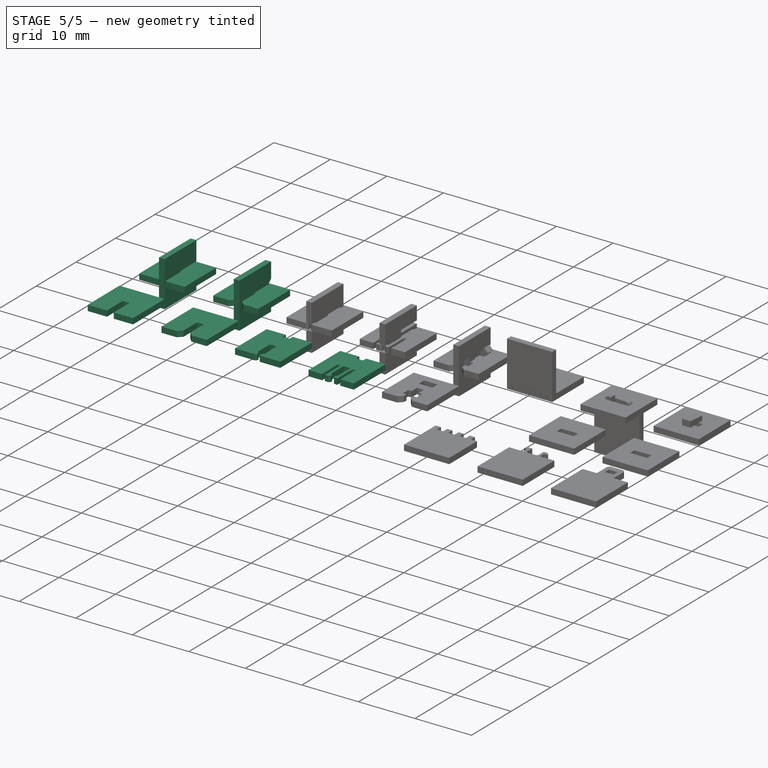
[diagram: stage 5 of 5 — iso view after this stage's code; geometry added in this stage tinted green]
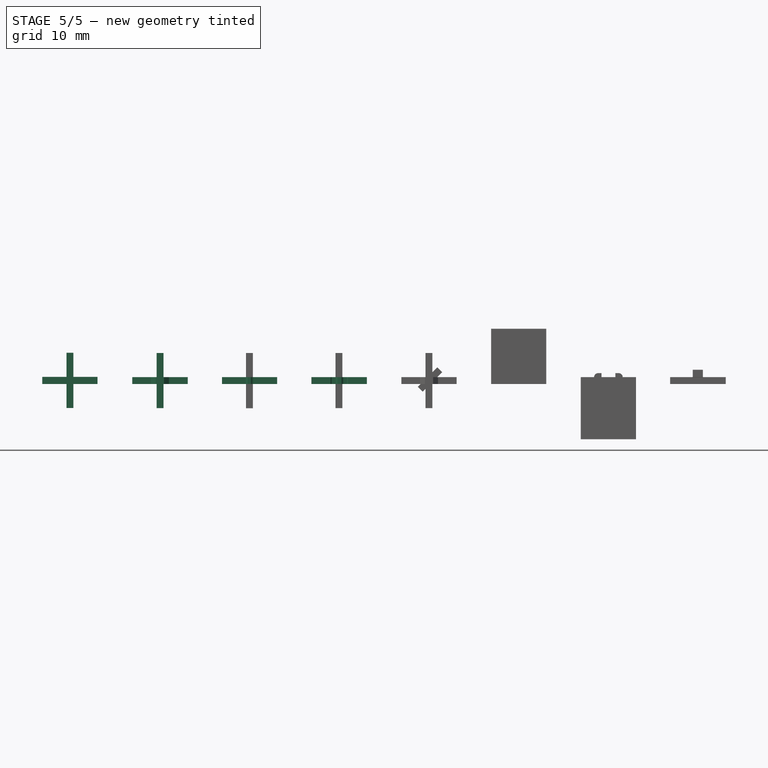
[diagram: stage 5 of 5 — front view after this stage's code; geometry added in this stage tinted green]
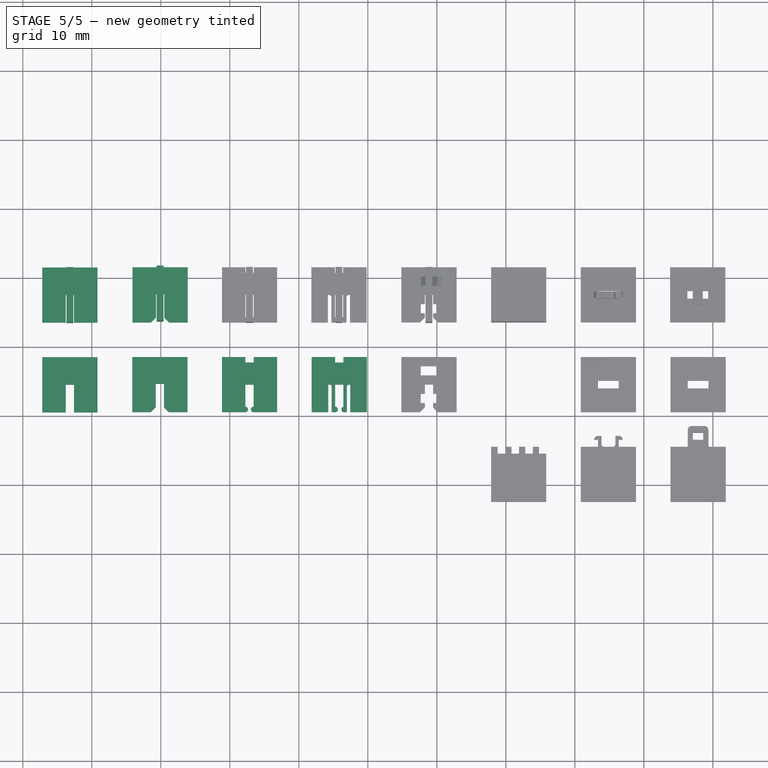
[diagram: stage 5 of 5 — top view after this stage's code; geometry added in this stage tinted green]
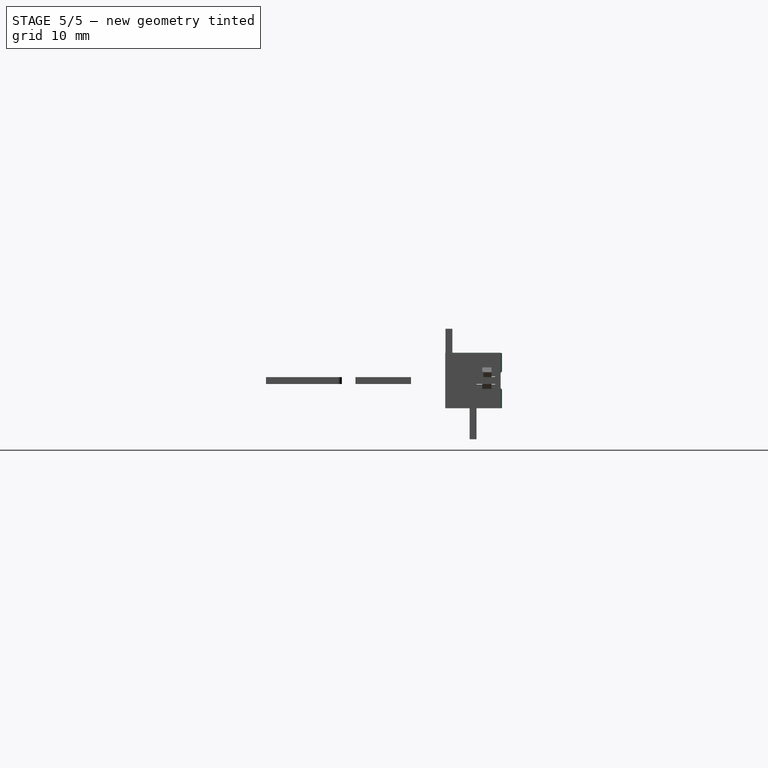
[diagram: stage 5 of 5 — right view after this stage's code; geometry added in this stage tinted green]
FEATURE [Sketcher::SketchObject] Sketch  label="slotSketch"
  Placement = pos=(-0.00464249,0.0763493,0) rot=(0,0,1;0rad)
  expr: Constraints[17] = Spreadsheet.wi
  expr: Constraints[20] = 2 * Spreadsheet.de
  expr: Constraints[19] = 2 * Spreadsheet.de
  expr: Constraints[16] = Spreadsheet.de
  sketch-geometry (8):
    g0: LineSegment StartX=-47.1758 StartY=25.3974 StartZ=0 EndX=-39.1758 EndY=25.3974 EndZ=0
    g1: LineSegment StartX=-39.1758 StartY=25.3974 StartZ=0 EndX=-39.1758 EndY=17.3974 EndZ=0
    g2: LineSegment StartX=-39.1758 StartY=17.3974 StartZ=0 EndX=-42.5758 EndY=17.3974 EndZ=0
    g3: LineSegment StartX=-47.1758 StartY=17.3974 StartZ=0 EndX=-47.1758 EndY=25.3974 EndZ=0
    g4: LineSegment StartX=-43.7758 StartY=21.3974 StartZ=0 EndX=-42.5758 EndY=21.3974 EndZ=0
    g5: LineSegment StartX=-42.5758 StartY=21.3974 StartZ=0 EndX=-42.5758 EndY=17.3974 EndZ=0
    g6: LineSegment StartX=-43.7758 StartY=17.3974 StartZ=0 EndX=-43.7758 EndY=21.3974 EndZ=0
    g7: LineSegment StartX=-43.7758 StartY=17.3974 StartZ=0 EndX=-47.1758 EndY=17.3974 EndZ=0
  constraints (21):
    c: Coincident(g0,g1)
    c: Coincident(g1,g2)
    c: Coincident(g7,g3)
    c: Coincident(g3,g0)
    c: Horizontal(g0)
    c: Horizontal(g2)
    c: Vertical(g1)
    c: Vertical(g3)
    c: Coincident(g4,g5)
    c: Coincident(g6,g4)
    c: Horizontal(g4)
    c: Vertical(g5)
    c: Vertical(g6)
    c: Tangent(g2,g7)
    c: Coincident(g6,g7)
    c: Coincident(g5,g2)
    c: DistanceY(g6,g6) = 4
    c: DistanceX(g4,g4) = 1.2
    c: Equal(g7,g2)
    c: DistanceY(g1,g1) = 8
    c: DistanceX(g0,g0) = 8
FEATURE [Spreadsheet::Sheet] Spreadsheet
  cells = A1=stock thickness; B1(th)=1; A2=slot depth; B2(de)=4; A3=slot width; B3(wi)==th + 2 * cl; A4=clearance; B4(cl)=0.1; A5=chamfer size; B5(ch)=1; A6=radius; B6(r)=0.4; A7=flexure; B7(fl)=0.5; A8=fingers; B8(nf)=4; A9=finger depth; B9(df)==th; A10=finger width; B10(wf)==de / nf + cl; A11=finger pitch; B11(pf)==2 * de / nf; A12=snap width; B12(sw)=3
FEATURE [Part::Part2DObjectPython] Clone2D  label="Sketch (2D)"  # Draft 2D object (typed FeaturePython)
  Fuse = false
  Objects = -> [Sketch]
  Placement = pos=(0,13.7013,0) rot=(0,0,1;0rad)
  Scale = (1,1,1)
FEATURE [Part::Extrusion] Extrude  label="slot"
  Base = -> Clone2D
  Dir = (0,0,1)
  DirMode = 2
  FaceMakerClass = Part::FaceMakerBullseye
  LengthFwd = 1
  LengthRev = 0
  Placement = pos=(-8.8279e-07,-0.701299,1.20502e-07) rot=(0,0,1;0rad)
  Solid = true
  Symmetric = false
  expr: LengthFwd = Spreadsheet.th
FEATURE [Part::FeaturePython] b_joints_001_  label="slots 1"  # a2plus imported part (geometry in sourceFile) (typed FeaturePython)
  Placement = pos=(-1.40211e-06,13,0.0282583) rot=(0,0,1;0rad)
  a2p_Version = V0.1
  fixedPosition = true
  sourceFile = ./joints.FCStd
  sourcePart = slot
  subassemblyImport = false
  timeLastImport = 1.56873e+09
  updateColors = true
FEATURE [Part::FeaturePython] b_joints_001_001  label="slots 2"  # a2plus imported part (geometry in sourceFile) (typed FeaturePython)
  Placement = pos=(-42.6758,81.7949,-42.6476) rot=(0.707107,0,-0.707107;3.14159rad)
  a2p_Version = V0.1
  fixedPosition = false
  sourceFile = ./joints.FCStd
  sourcePart = slot
  subassemblyImport = false
  timeLastImport = 1.56873e+09
  updateColors = true
FEATURE [App::FeaturePython] centerOfMass_001  label="centerOfMass_001__slots2"  # a2plus constraint (typed FeaturePython)
  Object1 = b_joints_001_
  Object2 = b_joints_001_001
  ParentTreeObject = -> b_joints_001_
  SubElement1 = Face7
  SubElement2 = Face7
  Type = CenterOfMass
  directionConstraint = 1
  lockRotation = false
  offset = 0
FEATURE [App::FeaturePython] centerOfMass_001_mirror  label="centerOfMass_001__slots1"  # a2plus constraint (typed FeaturePython)
  Object1 = b_joints_001_
  Object2 = b_joints_001_001
  ParentTreeObject = -> b_joints_001_001
  SubElement1 = Face7
  SubElement2 = Face7
  Type = CenterOfMass
  directionConstraint = 1
  lockRotation = false
  offset = 0
FEATURE [Sketcher::SketchObject] Sketch001  label="chamferSketch"
  Placement = pos=(12.8326,0.126644,0) rot=(0,0,1;0rad)
  expr: Constraints[25] = Spreadsheet.ch
  expr: Constraints[24] = Spreadsheet.ch
  expr: Constraints[14] = Spreadsheet.wi
  expr: Constraints[17] = 2 * Spreadsheet.de
  expr: Constraints[16] = 2 * Spreadsheet.de
  sketch-geometry (10):
    g0: LineSegment StartX=-46.9728 StartY=25.2942 StartZ=0 EndX=-38.9728 EndY=25.2942 EndZ=0
    g1: LineSegment StartX=-38.9728 StartY=25.2942 StartZ=0 EndX=-38.9728 EndY=17.2942 EndZ=0
    g2: LineSegment StartX=-38.9728 StartY=17.2942 StartZ=0 EndX=-41.6656 EndY=17.2942 EndZ=0
    g3: LineSegment StartX=-46.9728 StartY=17.2942 StartZ=0 EndX=-46.9728 EndY=25.2942 EndZ=0
    g4: LineSegment StartX=-43.5728 StartY=21.3974 StartZ=0 EndX=-42.3728 EndY=21.3974 EndZ=0
    g5: LineSegment StartX=-42.3728 StartY=21.3974 StartZ=0 EndX=-42.3728 EndY=18.0013 EndZ=0
    g6: LineSegment StartX=-43.5728 StartY=18.0013 StartZ=0 EndX=-43.5728 EndY=21.3974 EndZ=0
    g7: LineSegment StartX=-44.2799 StartY=17.2942 StartZ=0 EndX=-46.9728 EndY=17.2942 EndZ=0
    g8: LineSegment StartX=-41.6656 StartY=17.2942 StartZ=0 EndX=-42.3728 EndY=18.0013 EndZ=0
    g9: LineSegment StartX=-44.2799 StartY=17.2942 StartZ=0 EndX=-43.5728 EndY=18.0013 EndZ=0
  constraints (26):
    c: Coincident(g0,g1)
    c: Coincident(g1,g2)
    c: Coincident(g7,g3)
    c: Coincident(g3,g0)
    c: Horizontal(g0)
    c: Horizontal(g2)
    c: Vertical(g1)
    c: Vertical(g3)
    c: Coincident(g4,g5)
    c: Coincident(g6,g4)
    c: Horizontal(g4)
    c: Vertical(g5)
    c: Vertical(g6)
    c: Tangent(g2,g7)
    c: DistanceX(g4,g4) = 1.2
    c: Equal(g7,g2)
    c: DistanceY(g1,g1) = 8
    c: DistanceX(g0,g0) = 8
    c: Coincident(g6,g9)
    c: Coincident(g7,g9)
    c: Coincident(g5,g8)
    c: Coincident(g2,g8)
    c: Angle(g9) = 0.785398
    c: Angle(g8) = 2.35619
    c: Distance(g9) = 1
    c: Distance(g8) = 1
FEATURE [Part::Part2DObjectPython] Clone2D001  label="chamferSketch (2D)"  # Draft 2D object (typed FeaturePython)
  Fuse = false
  Objects = -> [Sketch001]
  Placement = pos=(12.8326,13.1266,0) rot=(0,0,1;0rad)
  Scale = (1,1,1)
FEATURE [Part::Extrusion] Extrude001  label="chamfer"
  Base = -> Clone2D001
  Dir = (0,0,1)
  DirMode = 2
  FaceMakerClass = Part::FaceMakerBullseye
  LengthFwd = 1
  LengthRev = 0
  Solid = true
  Symmetric = false
  expr: LengthFwd = Spreadsheet.th
FEATURE [Part::FeaturePython] b_joints_001_002  label="chamfer 1"  # a2plus imported part (geometry in sourceFile) (typed FeaturePython)
  Placement = pos=(0.0361938,13,0) rot=(0,0,1;0rad)
  a2p_Version = V0.1
  fixedPosition = true
  sourceFile = ./joints.FCStd
  sourcePart = chamfer
  subassemblyImport = false
  timeLastImport = 1.56873e+09
  updateColors = true
FEATURE [Part::FeaturePython] b_joints_001_003  label="chamfer 2"  # a2plus imported part (geometry in sourceFile) (typed FeaturePython)
  Placement = pos=(-30.604,82.0482,30.6402) rot=(0.707107,0,0.707107;3.14159rad)
  a2p_Version = V0.1
  fixedPosition = false
  sourceFile = ./joints.FCStd
  sourcePart = chamfer
  subassemblyImport = false
  timeLastImport = 1.56873e+09
  updateColors = true
FEATURE [App::FeaturePython] centerOfMass_002  label="centerOfMass_002__chamfer 2"  # a2plus constraint (typed FeaturePython)
  Object1 = b_joints_001_002
  Object2 = b_joints_001_003
  ParentTreeObject = -> b_joints_001_002
  SubElement1 = Face8
  SubElement2 = Face8
  Type = CenterOfMass
  directionConstraint = 1
  lockRotation = false
  offset = 0
FEATURE [App::FeaturePython] centerOfMass_002_mirror  label="centerOfMass_002__chamfer 1"  # a2plus constraint (typed FeaturePython)
  Object1 = b_joints_001_002
  Object2 = b_joints_001_003
  ParentTreeObject = -> b_joints_001_003
  SubElement1 = Face8
  SubElement2 = Face8
  Type = CenterOfMass
  directionConstraint = 1
  lockRotation = false
  offset = 0
FEATURE [Sketcher::SketchObject] Sketch002  label="snapFitSketch"
  Placement = pos=(22.5878,-2.16785,0) rot=(0,0,1;0rad)
  expr: Constraints[35] = Spreadsheet.wi
  expr: Constraints[36] = 2 * Spreadsheet.r
  expr: Constraints[34] = Spreadsheet.wi
  expr: Constraints[24] = Spreadsheet.de
  expr: Constraints[23] = Spreadsheet.r
  expr: Constraints[22] = Spreadsheet.r
  expr: Constraints[16] = 2 * Spreadsheet.de
  expr: Constraints[15] = 2 * Spreadsheet.de
  sketch-geometry (14):
    g0: LineSegment StartX=-43.728 StartY=27.5887 StartZ=0 EndX=-40.328 EndY=27.5887 EndZ=0
    g1: LineSegment StartX=-35.728 StartY=27.5887 StartZ=0 EndX=-35.728 EndY=19.5887 EndZ=0
    g2: LineSegment StartX=-35.728 StartY=19.5887 StartZ=0 EndX=-39.1389 EndY=19.5887 EndZ=0
    g3: LineSegment StartX=-43.728 StartY=19.5887 StartZ=0 EndX=-43.728 EndY=27.5887 EndZ=0
    g4: LineSegment StartX=-40.3389 StartY=23.5887 StartZ=0 EndX=-39.1389 EndY=23.5887 EndZ=0
    g5: LineSegment StartX=-39.1389 StartY=23.5887 StartZ=0 EndX=-39.1389 EndY=20.3887 EndZ=0
    g6: LineSegment StartX=-40.3389 StartY=20.3878 StartZ=0 EndX=-40.3389 EndY=23.5887 EndZ=0
    g7: LineSegment StartX=-40.3171 StartY=19.5887 StartZ=0 EndX=-43.728 EndY=19.5887 EndZ=0
    g8: ArcOfCircle CenterX=-40.3444 CenterY=19.9878 CenterZ=0 NormalX=0 NormalY=0 NormalZ=1 AngleXU=0 Radius=0.400037 StartAngle=4.78073 EndAngle=7.84029
    g9: ArcOfCircle CenterX=-39.1404 CenterY=19.9887 CenterZ=0 NormalX=0 NormalY=0 NormalZ=1 AngleXU=0 Radius=0.400003 StartAngle=1.56701 EndAngle=4.71617
    g10: LineSegment StartX=-39.128 StartY=27.5887 StartZ=0 EndX=-39.128 EndY=26.7887 EndZ=0
    g11: LineSegment StartX=-39.128 StartY=26.7887 StartZ=0 EndX=-40.328 EndY=26.7887 EndZ=0
    g12: LineSegment StartX=-40.328 StartY=26.7887 StartZ=0 EndX=-40.328 EndY=27.5887 EndZ=0
    g13: LineSegment StartX=-39.128 StartY=27.5887 StartZ=0 EndX=-35.728 EndY=27.5887 EndZ=0
  constraints (37):
    c: Coincident(g13,g1)
    c: Coincident(g1,g2)
    c: Coincident(g7,g3)
    c: Coincident(g3,g0)
    c: Horizontal(g0)
    c: Horizontal(g2)
    c: Vertical(g1)
    c: Vertical(g3)
    c: Coincident(g4,g5)
    c: Coincident(g6,g4)
    c: Horizontal(g4)
    c: Vertical(g5)
    c: Vertical(g6)
    c: Tangent(g2,g7)
    c: Equal(g7,g2)
    c: DistanceY(g1,g1) = 8
    c: DistanceX(g0,g13) = 8
    c: Coincident(g6,g8)
    c: Coincident(g8,g7)
    c: PointOnObject(g9,g5)
    c: Coincident(g5,g9)
    c: Coincident(g9,g2)
    c: DistanceY(g8,g6) = 0.4
    c: DistanceY(g9,g5) = 0.4
    c: DistanceY(g7,g4) = 4
    c: Coincident(g10,g11)
    c: Coincident(g11,g12)
    c: Horizontal(g11)
    c: Vertical(g10)
    c: Vertical(g12)
    c: Tangent(g0,g13)
    c: Coincident(g12,g0)
    c: Coincident(g10,g13)
    c: Equal(g0,g13)
    c: DistanceX(g11,g11) = 1.2
    c: DistanceX(g4,g4) = 1.2
    c: DistanceY(g11,g0) = 0.8
FEATURE [Part::Part2DObjectPython] Clone2D002  label="bistableSketch (2D)"  # Draft 2D object (typed FeaturePython)
  Fuse = false
  Objects = -> [Sketch002]
  Placement = pos=(22.5878,10.8321,0) rot=(0,0,1;0rad)
  Scale = (1,1,1)
FEATURE [Part::Extrusion] Extrude002  label="snapFit"
  Base = -> Clone2D002
  Dir = (0,0,1)
  DirMode = 2
  FaceMakerClass = Part::FaceMakerBullseye
  LengthFwd = 1
  LengthRev = 0
  Solid = true
  Symmetric = false
  expr: LengthFwd = Spreadsheet.th
FEATURE [Sketcher::SketchObject] Sketch003  label="flexureSketch"
  Placement = pos=(37.5786,-2.2781,0) rot=(0,0,1;0rad)
  expr: Constraints[65] = Spreadsheet.fl
  expr: Constraints[64] = Spreadsheet.fl / 2
  expr: Constraints[59] = Spreadsheet.fl
  expr: Constraints[23] = Spreadsheet.de
  expr: Constraints[22] = Spreadsheet.r
  expr: Constraints[14] = 2 * Spreadsheet.de
  expr: Constraints[66] = Spreadsheet.fl
  expr: Constraints[21] = Spreadsheet.r
  expr: Constraints[51] = Spreadsheet.de
  expr: Constraints[50] = Spreadsheet.de
  expr: Constraints[34] = Spreadsheet.wi
  expr: Constraints[35] = 2 * Spreadsheet.r
  expr: Constraints[60] = Spreadsheet.fl
  expr: Constraints[58] = Spreadsheet.fl / 2
  expr: Constraints[33] = Spreadsheet.wi
  expr: Constraints[15] = 2 * Spreadsheet.de
  sketch-geometry (24):
    g0: LineSegment StartX=-45.7188 StartY=27.6989 StartZ=0 EndX=-42.3188 EndY=27.6989 EndZ=0
    g1: LineSegment StartX=-37.7188 StartY=27.6989 StartZ=0 EndX=-37.7188 EndY=19.6989 EndZ=0
    g2: LineSegment StartX=-37.7188 StartY=19.6989 StartZ=0 EndX=-40.1188 EndY=19.6989 EndZ=0
    g3: LineSegment StartX=-45.7188 StartY=19.6989 StartZ=0 EndX=-45.7188 EndY=27.6989 EndZ=0
    g4: LineSegment StartX=-42.3188 StartY=23.6989 StartZ=0 EndX=-41.1188 EndY=23.6989 EndZ=0
    g5: LineSegment StartX=-41.1188 StartY=23.6989 StartZ=0 EndX=-41.1188 EndY=20.4989 EndZ=0
    g6: LineSegment StartX=-42.3188 StartY=20.4989 StartZ=0 EndX=-42.3188 EndY=23.6989 EndZ=0
    g7: LineSegment StartX=-42.3188 StartY=19.6989 StartZ=0 EndX=-42.8188 EndY=19.6989 EndZ=0
    g8: ArcOfCircle CenterX=-42.3188 CenterY=20.0989 CenterZ=0 NormalX=0 NormalY=0 NormalZ=1 AngleXU=0 Radius=0.4 StartAngle=4.71239 EndAngle=7.85398
    g9: ArcOfCircle CenterX=-40.9768 CenterY=20.0989 CenterZ=0 NormalX=0 NormalY=0 NormalZ=1 AngleXU=0 Radius=0.424446 StartAngle=1.91184 EndAngle=4.37134
    g10: LineSegment StartX=-41.1188 StartY=27.6989 StartZ=0 EndX=-41.1188 EndY=26.8989 EndZ=0
    g11: LineSegment StartX=-41.1188 StartY=26.8989 StartZ=0 EndX=-42.3188 EndY=26.8989 EndZ=0
    g12: LineSegment StartX=-42.3188 StartY=26.8989 StartZ=0 EndX=-42.3188 EndY=27.6989 EndZ=0
    g13: LineSegment StartX=-41.1188 StartY=27.6989 StartZ=0 EndX=-37.7188 EndY=27.6989 EndZ=0
    g14: LineSegment StartX=-42.8188 StartY=19.6989 StartZ=0 EndX=-42.8188 EndY=23.5221 EndZ=0
    g15: LineSegment StartX=-42.9955 StartY=23.6989 StartZ=0 EndX=-43.3188 EndY=23.6989 EndZ=0
    g16: LineSegment StartX=-43.3188 StartY=23.6989 StartZ=0 EndX=-43.3188 EndY=19.6989 EndZ=0
    g17: LineSegment StartX=-40.6188 StartY=19.6989 StartZ=0 EndX=-40.6188 EndY=23.5221 EndZ=0
    g18: LineSegment StartX=-40.442 StartY=23.6989 StartZ=0 EndX=-40.1188 EndY=23.6989 EndZ=0
    g19: LineSegment StartX=-40.1188 StartY=23.6989 StartZ=0 EndX=-40.1188 EndY=19.6989 EndZ=0
    g20: LineSegment StartX=-43.3188 StartY=19.6989 StartZ=0 EndX=-45.7188 EndY=19.6989 EndZ=0
    g21: LineSegment StartX=-40.6188 StartY=19.6989 StartZ=0 EndX=-41.1188 EndY=19.6989 EndZ=0
    g22: LineSegment StartX=-42.9955 StartY=23.6989 StartZ=0 EndX=-42.8188 EndY=23.5221 EndZ=0
    g23: LineSegment StartX=-40.6188 StartY=23.5221 StartZ=0 EndX=-40.442 EndY=23.6989 EndZ=0
  constraints (67):
    c: Coincident(g13,g1)
    c: Coincident(g1,g2)
    c: Coincident(g20,g3)
    c: Coincident(g3,g0)
    c: Horizontal(g0)
    c: Horizontal(g2)
    c: Vertical(g1)
    c: Vertical(g3)
    c: Coincident(g4,g5)
    c: Coincident(g6,g4)
    c: Horizontal(g4)
    c: Vertical(g5)
    c: Vertical(g6)
    c: Tangent(g2,g7)
    c: DistanceY(g1,g1) = 8
    c: DistanceX(g0,g13) = 8
    c: Coincident(g6,g8)
    c: Coincident(g8,g7)
    c: PointOnObject(g9,g5)
    c: Coincident(g5,g9)
    c: Coincident(g9,g21)
    c: DistanceY(g8,g6) = 0.4
    c: DistanceY(g9,g5) = 0.4
    c: DistanceY(g7,g4) = 4
    c: Coincident(g10,g11)
    c: Coincident(g11,g12)
    c: Horizontal(g11)
    c: Vertical(g10)
    c: Vertical(g12)
    c: Tangent(g0,g13)
    c: Coincident(g12,g0)
    c: Coincident(g10,g13)
    c: Equal(g0,g13)
    c: DistanceX(g11,g11) = 1.2
    c: DistanceX(g4,g4) = 1.2
    c: DistanceY(g11,g0) = 0.8
    c: Coincident(g15,g16)
    c: Horizontal(g15)
    c: Vertical(g14)
    c: Vertical(g16)
    c: Coincident(g18,g19)
    c: Horizontal(g18)
    c: Vertical(g17)
    c: Vertical(g19)
    c: Coincident(g7,g14)
    c: Coincident(g20,g16)
    c: Tangent(g7,g20)
    c: Tangent(g2,g21)
    c: Coincident(g17,g21)
    c: Coincident(g19,g2)
    c: DistanceY(g16,g16) = 4
    c: DistanceY(g19,g19) = 4
    c: Vertical(g7,g6)
    c: Vertical(g8,g6)
    c: Equal(g20,g2)
    c: Coincident(g15,g22)
    c: Coincident(g14,g22)
    c: Angle(g22) = -0.785398
    c: Distance(g22) = 0.25
    c: DistanceX(g15,g14) = 0.5
    c: DistanceX(g14,g4) = 0.5
    c: Coincident(g18,g23)
    c: Coincident(g17,g23)
    c: Angle(g23) = 0.785398
    c: Distance(g23) = 0.25
    c: DistanceX(g17,g18) = 0.5
    c: DistanceX(g4,g17) = 0.5
FEATURE [Part::Part2DObjectPython] Clone2D003  label="flexureSketch (2D)"  # Draft 2D object (typed FeaturePython)
  Fuse = false
  Objects = -> [Sketch003]
  Placement = pos=(37.5786,10.7219,0) rot=(0,0,1;0rad)
  Scale = (1,1,1)
FEATURE [Part::Extrusion] Extrude003  label="flexure"
  Base = -> Clone2D003
  Dir = (0,0,1)
  DirMode = 2
  FaceMakerClass = Part::FaceMakerBullseye
  LengthFwd = 1
  LengthRev = 0
  Solid = true
  Symmetric = false
  expr: LengthFwd = Spreadsheet.th
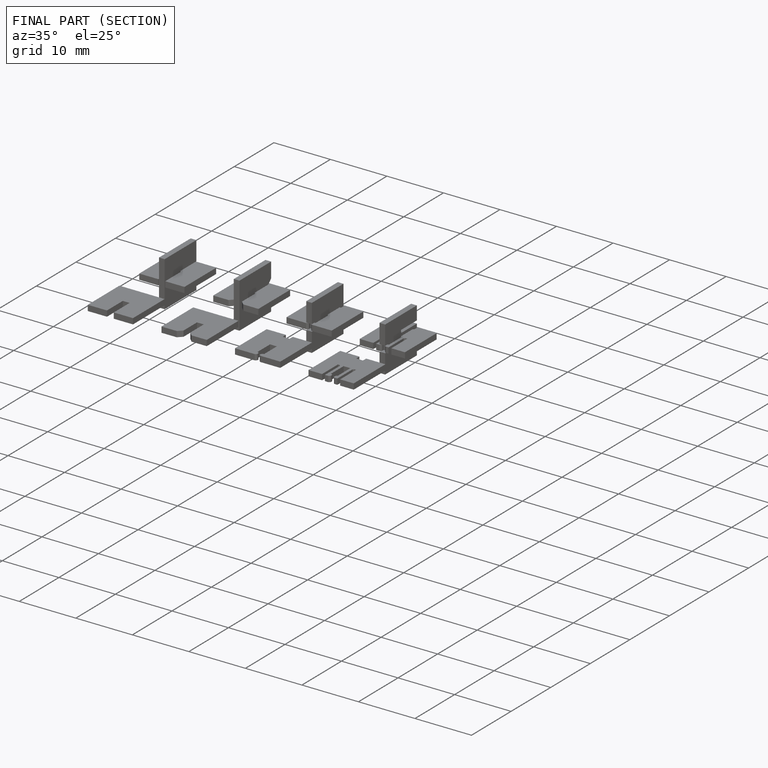
[diagram: finished part — half-section view (interior)]
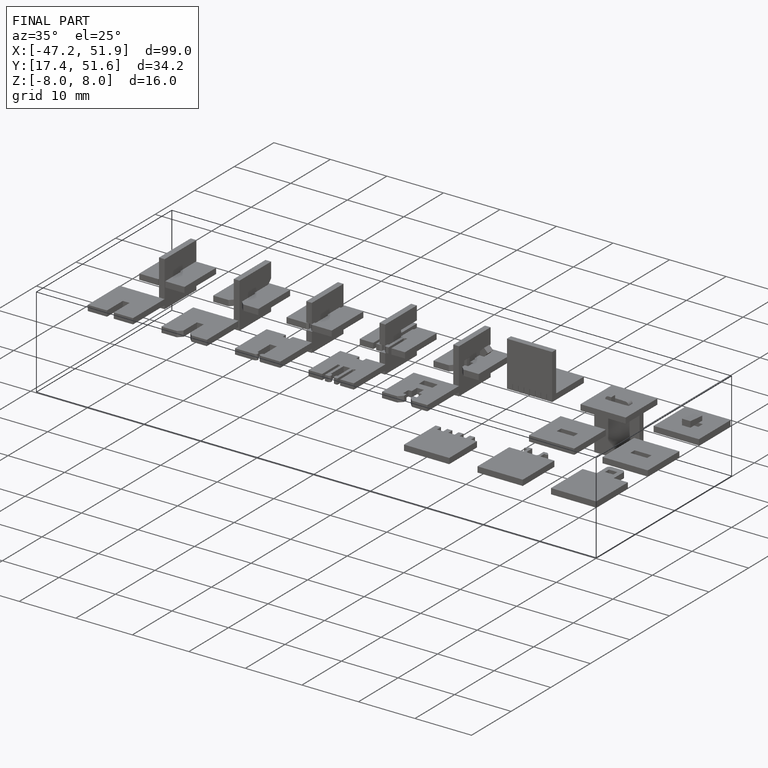
[diagram: finished part — iso view with bounding-box wireframe]
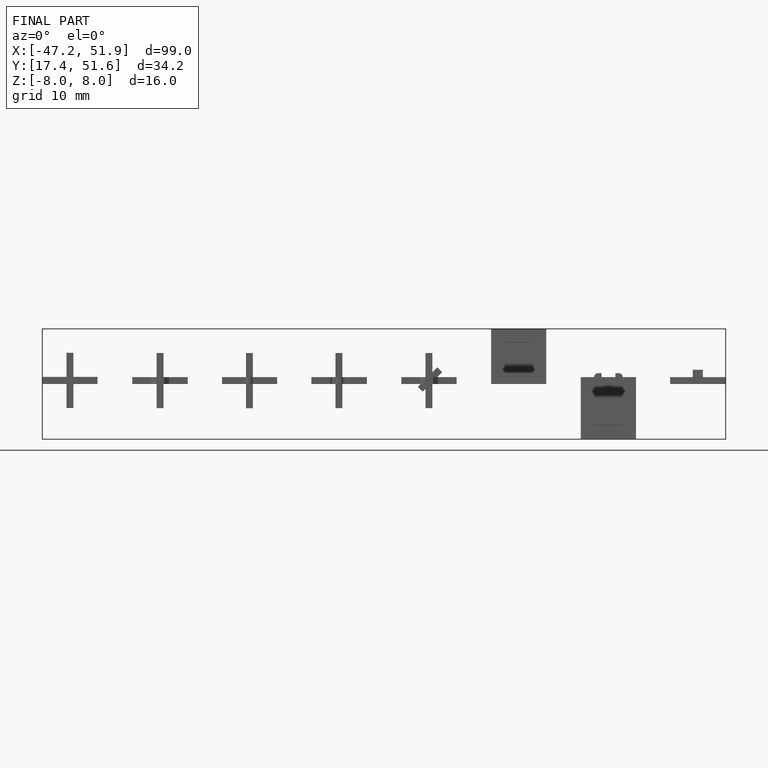
[diagram: finished part — front view with bounding-box wireframe]
